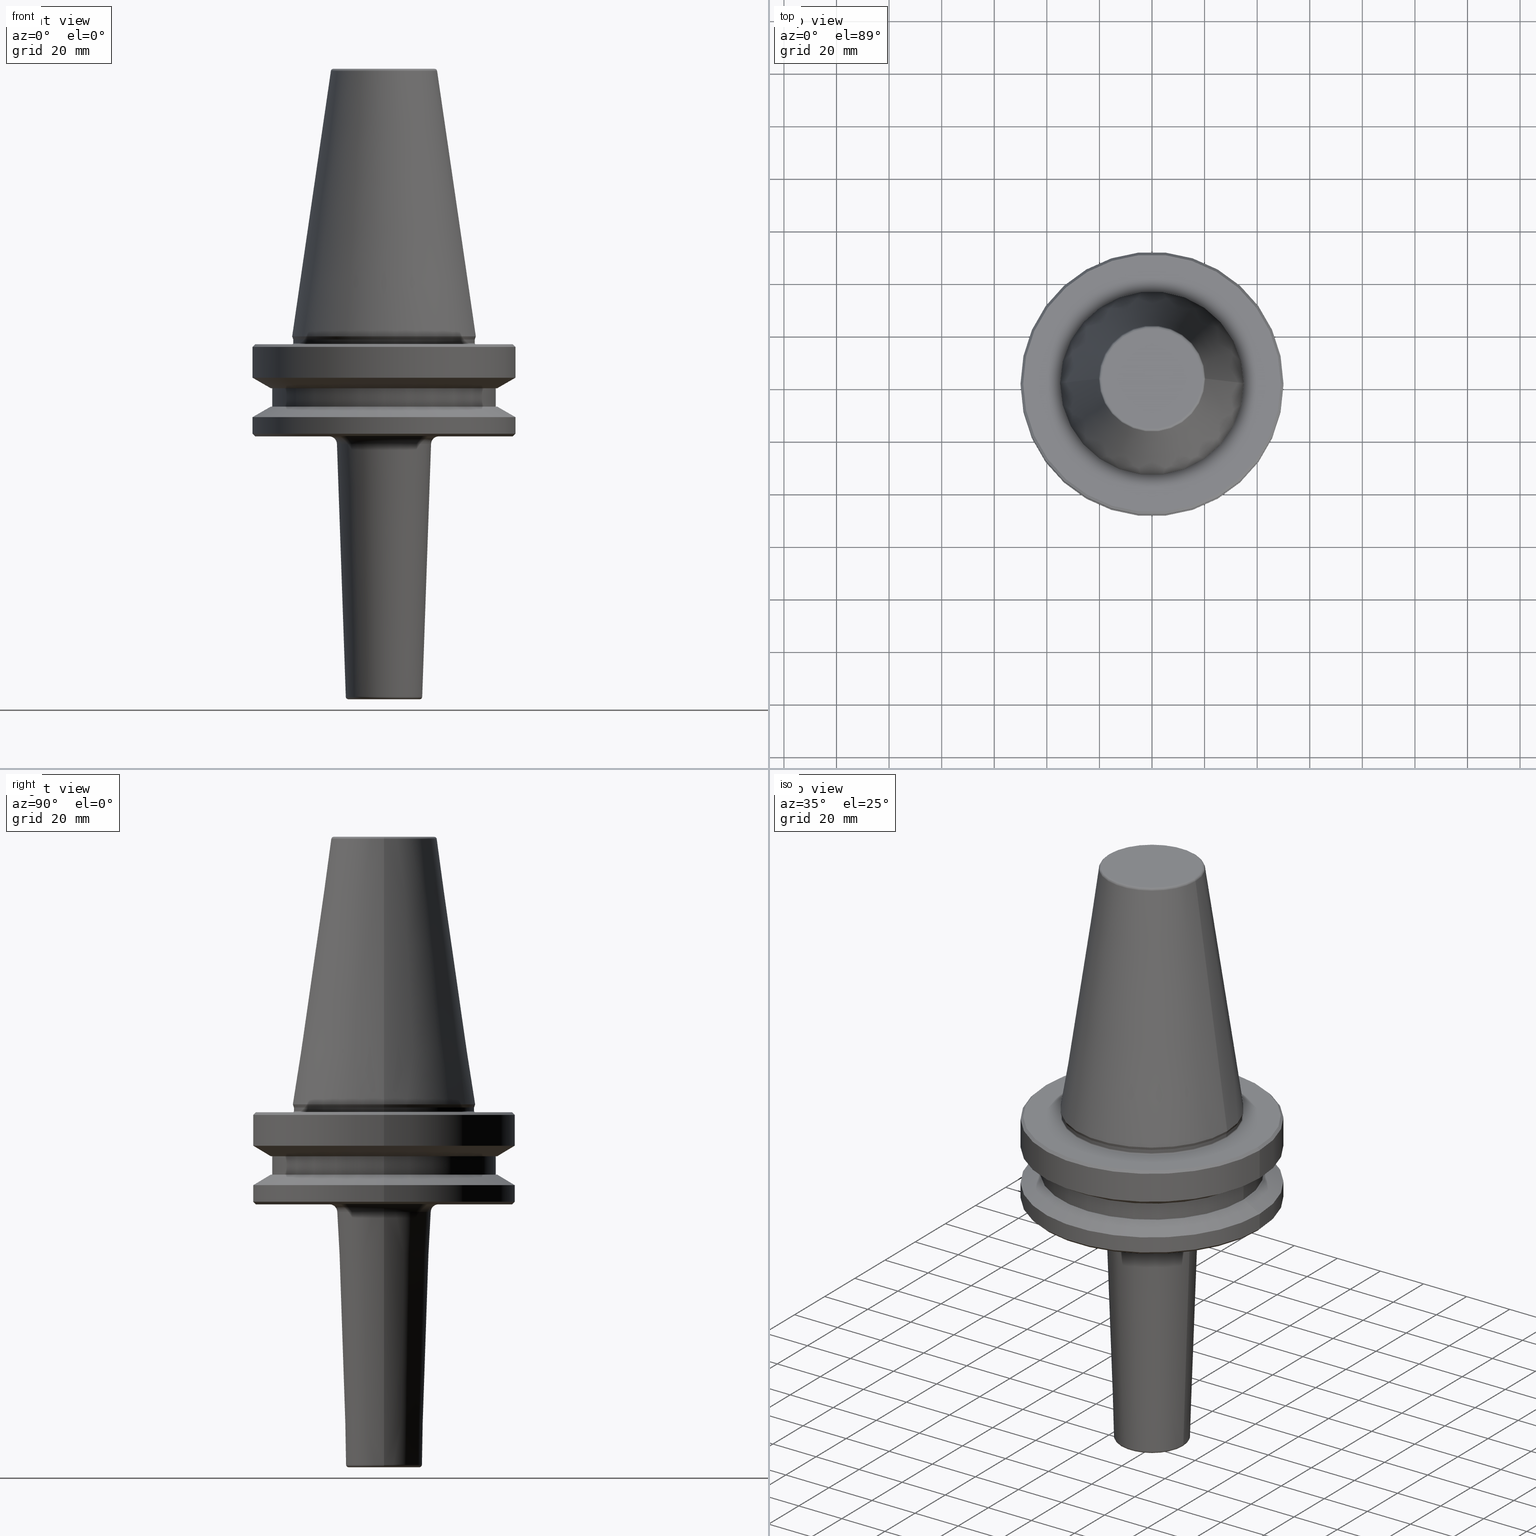
[diagram: canonical four-view strip — front | top / right | iso, engineering-drawing reading convention]
A machine part, canonical four-view strip (front | top / right | iso — engineering-drawing reading convention). The complete STEP part file that produces these views, byte-faithful:
ISO-10303-21;
HEADER;
FILE_DESCRIPTION (( 'STEP AP203' ),
    '1' );
FILE_NAME ('BT50 MCA16 100 AD+B-2.5G 25000 SL.STEP',
    '2019-05-24T11:05:23',
    ( '' ),
    ( '' ),
    'SwSTEP 2.0',
    'SolidWorks 2014',
    '' );
FILE_SCHEMA (( 'CONFIG_CONTROL_DESIGN' ));
ENDSEC;

DATA;
#1 = VECTOR ( 'NONE', #154, 999.9999999999998900 ) ;
#2 = FACE_BOUND ( 'NONE', #626, .T. ) ;
#3 = DIRECTION ( 'NONE',  ( -0.3420201433256682700, 4.188538737676986200E-017, 0.9396926207859086500 ) ) ;
#4 = LINE ( 'NONE', #543, #30 ) ;
#5 = DIRECTION ( 'NONE',  ( -1.000000000000000000, 0.0000000000000000000, 0.0000000000000000000 ) ) ;
#6 = CARTESIAN_POINT ( 'NONE',  ( 0.0000000000000000000, 0.0000000000000000000, -137.0000000000000000 ) ) ;
#7 = AXIS2_PLACEMENT_3D ( 'NONE', #752, #365, #443 ) ;
#8 = FACE_BOUND ( 'NONE', #764, .T. ) ;
#9 = DIRECTION ( 'NONE',  ( 0.1443082272673000800, 1.767266086135278300E-017, -0.9895327864921754600 ) ) ;
#10 = DIRECTION ( 'NONE',  ( 0.0000000000000000000, 0.0000000000000000000, -1.000000000000000000 ) ) ;
#11 = EDGE_CURVE ( 'NONE', #164, #284, #302, .T. ) ;
#12 = ORIENTED_EDGE ( 'NONE', *, *, #790, .T. ) ;
#13 = CARTESIAN_POINT ( 'NONE',  ( -50.00000000000000000, 6.123233995736766100E-015, -30.69977999677324500 ) ) ;
#14 = CIRCLE ( 'NONE', #80, 42.50000000000000000 ) ;
#15 = CONICAL_SURFACE ( 'NONE', #291, 50.00000000000000000, 0.7853981633974482800 ) ;
#16 = DIRECTION ( 'NONE',  ( 1.000000000000000000, 0.0000000000000000000, 0.0000000000000000000 ) ) ;
#17 = EDGE_CURVE ( 'NONE', #168, #212, #304, .T. ) ;
#18 = AXIS2_PLACEMENT_3D ( 'NONE', #223, #674, #146 ) ;
#19 = FACE_OUTER_BOUND ( 'NONE', #640, .T. ) ;
#20 = LINE ( 'NONE', #245, #936 ) ;
#21 = DIRECTION ( 'NONE',  ( -0.0000000000000000000, -0.0000000000000000000, 1.000000000000000000 ) ) ;
#22 = CARTESIAN_POINT ( 'NONE',  ( 34.50000000000000000, 0.0000000000000000000, -2.499999999999988500 ) ) ;
#23 = PLANE ( 'NONE',  #671 ) ;
#24 = DIRECTION ( 'NONE',  ( 1.000000000000000000, 0.0000000000000000000, 0.0000000000000000000 ) ) ;
#25 = PERSON_AND_ORGANIZATION ( #576, #958 ) ;
#26 = APPROVAL_ROLE ( '' ) ;
#27 = VERTEX_POINT ( 'NONE', #447 ) ;
#28 = AXIS2_PLACEMENT_3D ( 'NONE', #767, #841, #739 ) ;
#29 = CARTESIAN_POINT ( 'NONE',  ( 0.0000000000000000000, 0.0000000000000000000, -3.999999999999989800 ) ) ;
#30 = VECTOR ( 'NONE', #3, 999.9999999999998900 ) ;
#31 = DIRECTION ( 'NONE',  ( -0.0000000000000000000, -0.0000000000000000000, 1.000000000000000000 ) ) ;
#32 = VERTEX_POINT ( 'NONE', #838 ) ;
#33 = CARTESIAN_POINT ( 'NONE',  ( 0.0000000000000000000, 0.0000000000000000000, 124.5046326327850600 ) ) ;
#34 = ORIENTED_EDGE ( 'NONE', *, *, #588, .F. ) ;
#35 = APPROVAL ( #636, 'UNSPECIFIED' ) ;
#36 = DIRECTION ( 'NONE',  ( 1.000000000000000000, 0.0000000000000000000, 0.0000000000000000000 ) ) ;
#37 = AXIS2_PLACEMENT_3D ( 'NONE', #816, #310, #138 ) ;
#38 = CARTESIAN_POINT ( 'NONE',  ( 0.0000000000000000000, 0.0000000000000000000, -38.00000000000002100 ) ) ;
#39 = DIRECTION ( 'NONE',  ( 1.224646799147353200E-016, 1.000000000000000000, 0.0000000000000000000 ) ) ;
#40 = LINE ( 'NONE', #432, #730 ) ;
#41 = CIRCLE ( 'NONE', #250, 34.50000000000000000 ) ;
#42 = LINE ( 'NONE', #84, #776 ) ;
#43 = ORIENTED_EDGE ( 'NONE', *, *, #533, .T. ) ;
#44 = CARTESIAN_POINT ( 'NONE',  ( 0.0000000000000000000, 0.0000000000000000000, 124.5046326327850600 ) ) ;
#45 = EDGE_CURVE ( 'NONE', #307, #824, #472, .T. ) ;
#46 = ADVANCED_FACE ( 'NONE', ( #95 ), #814, .F. ) ;
#47 = ADVANCED_FACE ( 'NONE', ( #606 ), #101, .T. ) ;
#48 = CALENDAR_DATE ( 2019, 24, 5 ) ;
#49 = ORIENTED_EDGE ( 'NONE', *, *, #278, .F. ) ;
#50 = EDGE_CURVE ( 'NONE', #314, #116, #832, .T. ) ;
#51 = CIRCLE ( 'NONE', #28, 20.20381605152244500 ) ;
#52 = DIRECTION ( 'NONE',  ( 1.000000000000000000, 0.0000000000000000000, 0.0000000000000000000 ) ) ;
#53 = LINE ( 'NONE', #177, #473 ) ;
#54 = CYLINDRICAL_SURFACE ( 'NONE', #357, 50.00000000000000000 ) ;
#55 = AXIS2_PLACEMENT_3D ( 'NONE', #883, #430, #669 ) ;
#56 = CARTESIAN_POINT ( 'NONE',  ( 0.0000000000000000000, 0.0000000000000000000, -1.167677903268202300 ) ) ;
#57 = DIRECTION ( 'NONE',  ( 1.224646799147353200E-016, 1.000000000000000000, 0.0000000000000000000 ) ) ;
#58 = AXIS2_PLACEMENT_3D ( 'NONE', #29, #721, #765 ) ;
#59 = EDGE_LOOP ( 'NONE', ( #859, #801, #988, #144 ) ) ;
#60 = APPLICATION_CONTEXT ( 'configuration controlled 3d designs of mechanical parts and assemblies' ) ;
#61 = CARTESIAN_POINT ( 'NONE',  ( 50.00000000000000000, 0.0000000000000000000, -15.70022000322675400 ) ) ;
#62 = ORIENTED_EDGE ( 'NONE', *, *, #935, .F. ) ;
#63 = FACE_OUTER_BOUND ( 'NONE', #788, .T. ) ;
#64 = EDGE_CURVE ( 'NONE', #92, #206, #402, .T. ) ;
#65 = ORIENTED_EDGE ( 'NONE', *, *, #990, .F. ) ;
#66 = ORIENTED_EDGE ( 'NONE', *, *, #281, .T. ) ;
#67 = ORIENTED_EDGE ( 'NONE', *, *, #835, .F. ) ;
#68 = EDGE_CURVE ( 'NONE', #438, #168, #355, .T. ) ;
#69 = AXIS2_PLACEMENT_3D ( 'NONE', #393, #837, #308 ) ;
#70 = CARTESIAN_POINT ( 'NONE',  ( 0.0000000000000000000, 49.00000000000000000, -38.00000000000000700 ) ) ;
#71 = DIRECTION ( 'NONE',  ( 1.000000000000000000, 0.0000000000000000000, 0.0000000000000000000 ) ) ;
#72 = ORIENTED_EDGE ( 'NONE', *, *, #50, .F. ) ;
#73 = DIRECTION ( 'NONE',  ( -0.0000000000000000000, -0.0000000000000000000, 1.000000000000000000 ) ) ;
#74 = AXIS2_PLACEMENT_3D ( 'NONE', #965, #569, #503 ) ;
#75 = ORIENTED_EDGE ( 'NONE', *, *, #584, .F. ) ;
#76 = CARTESIAN_POINT ( 'NONE',  ( 0.0000000000000000000, 0.0000000000000000000, 124.5046326327850600 ) ) ;
#77 = ADVANCED_FACE ( 'NONE', ( #529 ), #275, .T. ) ;
#78 = LINE ( 'NONE', #670, #550 ) ;
#79 = ORIENTED_EDGE ( 'NONE', *, *, #810, .T. ) ;
#80 = AXIS2_PLACEMENT_3D ( 'NONE', #248, #173, #412 ) ;
#81 = EDGE_LOOP ( 'NONE', ( #974, #12, #603, #424 ) ) ;
#82 = DIRECTION ( 'NONE',  ( 1.000000000000000000, 0.0000000000000000000, 0.0000000000000000000 ) ) ;
#83 = CARTESIAN_POINT ( 'NONE',  ( 43.07217782649105000, 5.699027233244276800E-015, -26.69999999999998900 ) ) ;
#84 = CARTESIAN_POINT ( 'NONE',  ( 34.50000000000000000, 0.0000000000000000000, 124.5046326327850600 ) ) ;
#85 = ORIENTED_EDGE ( 'NONE', *, *, #708, .F. ) ;
#86 = DIRECTION ( 'NONE',  ( -0.0000000000000000000, -0.0000000000000000000, 1.000000000000000000 ) ) ;
#87 = AXIS2_PLACEMENT_3D ( 'NONE', #713, #259, #789 ) ;
#88 = DIRECTION ( 'NONE',  ( 0.03497858217561827800, 0.0000000000000000000, 0.9993880621605322200 ) ) ;
#89 = LINE ( 'NONE', #112, #336 ) ;
#90 = AXIS2_PLACEMENT_3D ( 'NONE', #470, #981, #457 ) ;
#91 = CIRCLE ( 'NONE', #179, 50.00000000000000000 ) ;
#92 = VERTEX_POINT ( 'NONE', #22 ) ;
#93 = CARTESIAN_POINT ( 'NONE',  ( 0.0000000000000000000, 0.0000000000000000000, -30.69977999677324500 ) ) ;
#94 = VECTOR ( 'NONE', #609, 1000.000000000000000 ) ;
#95 = FACE_OUTER_BOUND ( 'NONE', #495, .T. ) ;
#96 = DIRECTION ( 'NONE',  ( 1.000000000000000000, 0.0000000000000000000, 0.0000000000000000000 ) ) ;
#97 = DIRECTION ( 'NONE',  ( 0.0000000000000000000, 0.0000000000000000000, -1.000000000000000000 ) ) ;
#98 = EDGE_CURVE ( 'NONE', #314, #892, #527, .T. ) ;
#99 = DIRECTION ( 'NONE',  ( -0.0000000000000000000, -0.0000000000000000000, 1.000000000000000000 ) ) ;
#100 = DATE_TIME_ROLE ( 'creation_date' ) ;
#101 = TOROIDAL_SURFACE ( 'NONE', #718, 13.53438768746338800, 0.9999999999999879000 ) ;
#102 = EDGE_CURVE ( 'NONE', #585, #284, #327, .T. ) ;
#103 = ORIENTED_EDGE ( 'NONE', *, *, #742, .T. ) ;
#104 = DIRECTION ( 'NONE',  ( -0.0000000000000000000, -0.0000000000000000000, 1.000000000000000000 ) ) ;
#105 = DIRECTION ( 'NONE',  ( 1.000000000000000000, 0.0000000000000000000, 0.0000000000000000000 ) ) ;
#106 = ORIENTED_EDGE ( 'NONE', *, *, #157, .F. ) ;
#107 = DIRECTION ( 'NONE',  ( 1.000000000000000000, 0.0000000000000000000, 0.0000000000000000000 ) ) ;
#108 = AXIS2_PLACEMENT_3D ( 'NONE', #210, #131, #540 ) ;
#109 = EDGE_LOOP ( 'NONE', ( #961, #864, #526, #75 ) ) ;
#110 = DIRECTION ( 'NONE',  ( 0.7071067811865474600, 8.659560562354931600E-017, -0.7071067811865475700 ) ) ;
#111 = ORIENTED_EDGE ( 'NONE', *, *, #537, .F. ) ;
#112 = CARTESIAN_POINT ( 'NONE',  ( -42.50000000000000000, 5.204748896376250900E-015, 124.5046326327850600 ) ) ;
#113 = ORIENTED_EDGE ( 'NONE', *, *, #157, .T. ) ;
#114 = CARTESIAN_POINT ( 'NONE',  ( 0.0000000000000000000, 0.0000000000000000000, -38.00000000000002100 ) ) ;
#115 = CONICAL_SURFACE ( 'NONE', #968, 34.50000000000000000, 0.3490658503988654500 ) ;
#116 = VERTEX_POINT ( 'NONE', #860 ) ;
#117 = DESIGN_CONTEXT ( 'detailed design', #419, 'design' ) ;
#118 = DIRECTION ( 'NONE',  ( -0.0000000000000000000, -0.0000000000000000000, 1.000000000000000000 ) ) ;
#119 = EDGE_CURVE ( 'NONE', #445, #279, #497, .T. ) ;
#120 = DIRECTION ( 'NONE',  ( 1.000000000000000000, 0.0000000000000000000, 0.0000000000000000000 ) ) ;
#121 = LOCAL_TIME ( 16, 35, 23.00000000000000000, #723 ) ;
#122 = LOCAL_TIME ( 16, 35, 23.00000000000000000, #373 ) ;
#123 = EDGE_LOOP ( 'NONE', ( #262, #986, #862, #186 ) ) ;
#124 = EDGE_CURVE ( 'NONE', #168, #438, #51, .T. ) ;
#125 = DIRECTION ( 'NONE',  ( -0.0000000000000000000, -0.0000000000000000000, 1.000000000000000000 ) ) ;
#126 = DIRECTION ( 'NONE',  ( -0.7071067811865474600, 0.0000000000000000000, -0.7071067811865475700 ) ) ;
#127 = CIRCLE ( 'NONE', #499, 2.999999999999999100 ) ;
#128 = FACE_OUTER_BOUND ( 'NONE', #552, .T. ) ;
#129 = AXIS2_PLACEMENT_3D ( 'NONE', #525, #200, #71 ) ;
#130 = ORIENTED_EDGE ( 'NONE', *, *, #151, .T. ) ;
#131 = DIRECTION ( 'NONE',  ( -0.0000000000000000000, -0.0000000000000000000, 1.000000000000000000 ) ) ;
#132 = PLANE ( 'NONE',  #391 ) ;
#133 = EDGE_CURVE ( 'NONE', #161, #487, #508, .T. ) ;
#134 = LINE ( 'NONE', #798, #679 ) ;
#135 = DIRECTION ( 'NONE',  ( 1.000000000000000000, 0.0000000000000000000, 0.0000000000000000000 ) ) ;
#136 = ADVANCED_FACE ( 'NONE', ( #675 ), #344, .T. ) ;
#137 = DIRECTION ( 'NONE',  ( 1.000000000000000000, 0.0000000000000000000, 0.0000000000000000000 ) ) ;
#138 = DIRECTION ( 'NONE',  ( 1.000000000000000000, 0.0000000000000000000, 0.0000000000000000000 ) ) ;
#139 = CC_DESIGN_APPROVAL ( #35, ( #959 ) ) ;
#140 = ORIENTED_EDGE ( 'NONE', *, *, #785, .F. ) ;
#141 = ADVANCED_FACE ( 'NONE', ( #658 ), #328, .T. ) ;
#142 = VECTOR ( 'NONE', #311, 1000.000000000000000 ) ;
#143 = CONICAL_SURFACE ( 'NONE', #589, 18.00000000000003900, 0.03498571882852540000 ) ;
#144 = ORIENTED_EDGE ( 'NONE', *, *, #742, .F. ) ;
#145 = AXIS2_PLACEMENT_3D ( 'NONE', #498, #31, #501 ) ;
#146 = DIRECTION ( 'NONE',  ( 1.000000000000000000, 0.0000000000000000000, 0.0000000000000000000 ) ) ;
#147 = ADVANCED_FACE ( 'NONE', ( #631 ), #15, .T. ) ;
#148 = DIRECTION ( 'NONE',  ( -1.000000000000000000, 0.0000000000000000000, 0.0000000000000000000 ) ) ;
#149 = CARTESIAN_POINT ( 'NONE',  ( -35.00000000000000000, 4.286263797015737300E-015, -2.999999999999995600 ) ) ;
#150 = CARTESIAN_POINT ( 'NONE',  ( 0.0000000000000000000, 0.0000000000000000000, -19.70000000000001000 ) ) ;
#151 = EDGE_CURVE ( 'NONE', #614, #331, #389, .T. ) ;
#152 = ORIENTED_EDGE ( 'NONE', *, *, #98, .F. ) ;
#153 = VERTEX_POINT ( 'NONE', #158 ) ;
#154 = DIRECTION ( 'NONE',  ( 0.3420201433256682700, 0.0000000000000000000, 0.9396926207859086500 ) ) ;
#155 = CIRCLE ( 'NONE', #282, 17.89867275112848300 ) ;
#156 = CARTESIAN_POINT ( 'NONE',  ( -50.00000000000000000, 6.123233995736766900E-015, -15.70022000322675400 ) ) ;
#157 = EDGE_CURVE ( 'NONE', #279, #445, #14, .T. ) ;
#158 = CARTESIAN_POINT ( 'NONE',  ( -43.07217782649105000, 0.0000000000000000000, -26.69999999999998900 ) ) ;
#159 = APPROVAL_PERSON_ORGANIZATION ( #579, #35, #184 ) ;
#160 = FACE_OUTER_BOUND ( 'NONE', #109, .T. ) ;
#161 = VERTEX_POINT ( 'NONE', #615 ) ;
#162 = DIRECTION ( 'NONE',  ( -0.0000000000000000000, -0.0000000000000000000, 1.000000000000000000 ) ) ;
#163 = CARTESIAN_POINT ( 'NONE',  ( -19.21428326503027200, 2.413662457824437800E-015, 101.7999999999999800 ) ) ;
#164 = VERTEX_POINT ( 'NONE', #83 ) ;
#165 = ORIENTED_EDGE ( 'NONE', *, *, #790, .F. ) ;
#166 = AXIS2_PLACEMENT_3D ( 'NONE', #375, #736, #948 ) ;
#167 = VERTEX_POINT ( 'NONE', #163 ) ;
#168 = VERTEX_POINT ( 'NONE', #379 ) ;
#169 = DIRECTION ( 'NONE',  ( 0.0000000000000000000, 0.0000000000000000000, -1.000000000000000000 ) ) ;
#170 = DIRECTION ( 'NONE',  ( -0.7071067811865474600, 8.659560562354931600E-017, 0.7071067811865475700 ) ) ;
#171 = EDGE_CURVE ( 'NONE', #168, #167, #715, .T. ) ;
#172 = CIRCLE ( 'NONE', #217, 1.000000000000000900 ) ;
#173 = DIRECTION ( 'NONE',  ( -0.0000000000000000000, -0.0000000000000000000, 1.000000000000000000 ) ) ;
#174 = DIRECTION ( 'NONE',  ( -0.0000000000000000000, -0.0000000000000000000, 1.000000000000000000 ) ) ;
#175 = CALENDAR_DATE ( 2019, 24, 5 ) ;
#176 = ORIENTED_EDGE ( 'NONE', *, *, #188, .T. ) ;
#177 = CARTESIAN_POINT ( 'NONE',  ( -43.07217782649103600, 5.274820470751785100E-015, -19.70000000000001000 ) ) ;
#178 = EDGE_CURVE ( 'NONE', #977, #271, #265, .T. ) ;
#179 = AXIS2_PLACEMENT_3D ( 'NONE', #745, #716, #515 ) ;
#180 = CIRCLE ( 'NONE', #634, 43.07217782649105000 ) ;
#181 = CARTESIAN_POINT ( 'NONE',  ( 0.0000000000000000000, 0.0000000000000000000, 101.8000000000000000 ) ) ;
#182 = ORIENTED_EDGE ( 'NONE', *, *, #678, .F. ) ;
#183 = CIRCLE ( 'NONE', #185, 19.21428326503027200 ) ;
#184 = APPROVAL_ROLE ( '' ) ;
#185 = AXIS2_PLACEMENT_3D ( 'NONE', #701, #104, #727 ) ;
#186 = ORIENTED_EDGE ( 'NONE', *, *, #64, .F. ) ;
#187 = CARTESIAN_POINT ( 'NONE',  ( 49.00000000000000000, 0.0000000000000000000, -38.00000000000002100 ) ) ;
#188 = EDGE_CURVE ( 'NONE', #161, #92, #908, .T. ) ;
#189 = ADVANCED_FACE ( 'NONE', ( #917 ), #849, .T. ) ;
#190 = DIRECTION ( 'NONE',  ( -0.0000000000000000000, -0.0000000000000000000, 1.000000000000000000 ) ) ;
#191 = UNCERTAINTY_MEASURE_WITH_UNIT (LENGTH_MEASURE( 1.000000000000000100E-005 ), #632, 'distance_accuracy_value', 'NONE');
#192 = ORIENTED_EDGE ( 'NONE', *, *, #264, .T. ) ;
#193 = EDGE_LOOP ( 'NONE', ( #666, #802, #440, #673 ) ) ;
#194 = VERTEX_POINT ( 'NONE', #285 ) ;
#195 = CC_DESIGN_SECURITY_CLASSIFICATION ( #881, ( #959 ) ) ;
#196 = CARTESIAN_POINT ( 'NONE',  ( -43.07217782649103600, 5.699027233244276000E-015, -19.70000000000001000 ) ) ;
#197 = DIRECTION ( 'NONE',  ( -1.000000000000000000, 0.0000000000000000000, -0.0000000000000000000 ) ) ;
#198 = AXIS2_PLACEMENT_3D ( 'NONE', #535, #987, #934 ) ;
#199 = DIRECTION ( 'NONE',  ( 1.000000000000000000, 0.0000000000000000000, 0.0000000000000000000 ) ) ;
#200 = DIRECTION ( 'NONE',  ( -0.0000000000000000000, -0.0000000000000000000, 1.000000000000000000 ) ) ;
#201 = ORIENTED_EDGE ( 'NONE', *, *, #124, .T. ) ;
#202 = CARTESIAN_POINT ( 'NONE',  ( -34.92499999999999700, 4.277078946022131700E-015, 0.0000000000000000000 ) ) ;
#203 = ORIENTED_EDGE ( 'NONE', *, *, #442, .T. ) ;
#204 = LINE ( 'NONE', #783, #290 ) ;
#205 = DIRECTION ( 'NONE',  ( 1.000000000000000000, 0.0000000000000000000, 0.0000000000000000000 ) ) ;
#206 = VERTEX_POINT ( 'NONE', #659 ) ;
#207 = VERTEX_POINT ( 'NONE', #856 ) ;
#208 = EDGE_CURVE ( 'NONE', #647, #331, #979, .T. ) ;
#209 = EDGE_CURVE ( 'NONE', #92, #161, #486, .T. ) ;
#210 = CARTESIAN_POINT ( 'NONE',  ( 0.0000000000000000000, 0.0000000000000000000, -38.00000000000002100 ) ) ;
#211 = ORIENTED_EDGE ( 'NONE', *, *, #418, .T. ) ;
#212 = VERTEX_POINT ( 'NONE', #202 ) ;
#213 = CC_DESIGN_PERSON_AND_ORGANIZATION_ASSIGNMENT ( #894, #563, ( #406 ) ) ;
#214 = CARTESIAN_POINT ( 'NONE',  ( 0.0000000000000000000, 0.0000000000000000000, -26.69999999999998900 ) ) ;
#215 = FACE_OUTER_BOUND ( 'NONE', #247, .T. ) ;
#216 = CIRCLE ( 'NONE', #743, 43.07217782649103600 ) ;
#217 = AXIS2_PLACEMENT_3D ( 'NONE', #865, #885, #433 ) ;
#218 = DIRECTION ( 'NONE',  ( -0.0000000000000000000, -0.0000000000000000000, 1.000000000000000000 ) ) ;
#219 = DIRECTION ( 'NONE',  ( -0.0000000000000000000, -0.0000000000000000000, 1.000000000000000000 ) ) ;
#220 = ORIENTED_EDGE ( 'NONE', *, *, #11, .F. ) ;
#221 = AXIS2_PLACEMENT_3D ( 'NONE', #822, #573, #292 ) ;
#222 = DIRECTION ( 'NONE',  ( 1.000000000000000000, 0.0000000000000000000, 0.0000000000000000000 ) ) ;
#223 = CARTESIAN_POINT ( 'NONE',  ( 0.0000000000000000000, 0.0000000000000000000, 0.0000000000000000000 ) ) ;
#224 = EDGE_CURVE ( 'NONE', #977, #824, #40, .T. ) ;
#225 = ORIENTED_EDGE ( 'NONE', *, *, #387, .F. ) ;
#226 = CIRCLE ( 'NONE', #69, 50.00000000000000000 ) ;
#227 = FACE_OUTER_BOUND ( 'NONE', #931, .T. ) ;
#228 = ORIENTED_EDGE ( 'NONE', *, *, #224, .F. ) ;
#229 = EDGE_CURVE ( 'NONE', #32, #541, #378, .T. ) ;
#230 = AXIS2_PLACEMENT_3D ( 'NONE', #763, #305, #905 ) ;
#231 = DIRECTION ( 'NONE',  ( -0.0000000000000000000, -0.0000000000000000000, 1.000000000000000000 ) ) ;
#232 = CARTESIAN_POINT ( 'NONE',  ( -49.00000000000000000, 6.062001655779398500E-015, -38.00000000000002100 ) ) ;
#233 = DIRECTION ( 'NONE',  ( 0.0000000000000000000, 0.0000000000000000000, -1.000000000000000000 ) ) ;
#234 = ADVANCED_FACE ( 'NONE', ( #252 ), #574, .T. ) ;
#235 = ORIENTED_EDGE ( 'NONE', *, *, #941, .T. ) ;
#236 = CARTESIAN_POINT ( 'NONE',  ( 0.0000000000000000000, 0.0000000000000000000, -38.00000000000000700 ) ) ;
#237 = DIRECTION ( 'NONE',  ( 0.0000000000000000000, -0.0000000000000000000, 1.000000000000000000 ) ) ;
#238 = CARTESIAN_POINT ( 'NONE',  ( 0.0000000000000000000, 0.0000000000000000000, -19.70000000000001000 ) ) ;
#239 = AXIS2_PLACEMENT_3D ( 'NONE', #6, #880, #644 ) ;
#240 = FACE_OUTER_BOUND ( 'NONE', #657, .T. ) ;
#241 = CIRCLE ( 'NONE', #800, 35.00000000000000000 ) ;
#242 = CARTESIAN_POINT ( 'NONE',  ( 0.0000000000000000000, 0.0000000000000000000, -30.69977999677324500 ) ) ;
#243 = CIRCLE ( 'NONE', #129, 13.53438768746338800 ) ;
#244 = DIRECTION ( 'NONE',  ( 0.0000000000000000000, 0.0000000000000000000, -1.000000000000000000 ) ) ;
#245 = CARTESIAN_POINT ( 'NONE',  ( 34.92499999999999700, 4.277078946022130900E-015, 0.0000000000000000000 ) ) ;
#246 = CC_DESIGN_PERSON_AND_ORGANIZATION_ASSIGNMENT ( #680, #873, ( #431 ) ) ;
#247 = EDGE_LOOP ( 'NONE', ( #998, #425, #79, #367 ) ) ;
#248 = CARTESIAN_POINT ( 'NONE',  ( 0.0000000000000000000, 0.0000000000000000000, -19.70000000000001000 ) ) ;
#249 = DIRECTION ( 'NONE',  ( -0.0000000000000000000, -0.0000000000000000000, 1.000000000000000000 ) ) ;
#250 = AXIS2_PLACEMENT_3D ( 'NONE', #415, #869, #711 ) ;
#251 = CARTESIAN_POINT ( 'NONE',  ( -20.89683693761007900, 2.559124446794836100E-015, -41.00000000000000700 ) ) ;
#252 = FACE_OUTER_BOUND ( 'NONE', #818, .T. ) ;
#253 = CIRCLE ( 'NONE', #166, 19.21428326503027200 ) ;
#254 = FACE_OUTER_BOUND ( 'NONE', #787, .T. ) ;
#255 = ORIENTED_EDGE ( 'NONE', *, *, #912, .F. ) ;
#256 = CARTESIAN_POINT ( 'NONE',  ( 34.50000000000000000, 0.0000000000000000000, -1.167677903268202300 ) ) ;
#257 = ADVANCED_FACE ( 'NONE', ( #595 ), #907, .T. ) ;
#258 = EDGE_CURVE ( 'NONE', #153, #884, #342, .T. ) ;
#259 = DIRECTION ( 'NONE',  ( 0.0000000000000000000, 0.0000000000000000000, 1.000000000000000000 ) ) ;
#260 = CARTESIAN_POINT ( 'NONE',  ( -50.00000000000000000, 0.0000000000000000000, -3.999999999999989800 ) ) ;
#261 = CARTESIAN_POINT ( 'NONE',  ( 0.0000000000000000000, 35.00000000000000000, -3.000000000000002700 ) ) ;
#262 = ORIENTED_EDGE ( 'NONE', *, *, #188, .F. ) ;
#263 = PERSON_AND_ORGANIZATION_ROLE ( 'design_supplier' ) ;
#264 = EDGE_CURVE ( 'NONE', #448, #884, #668, .T. ) ;
#265 = CIRCLE ( 'NONE', #450, 43.07217782649103600 ) ;
#266 = DIRECTION ( 'NONE',  ( 1.000000000000000000, 0.0000000000000000000, 0.0000000000000000000 ) ) ;
#267 = ORIENTED_EDGE ( 'NONE', *, *, #439, .F. ) ;
#268 = CIRCLE ( 'NONE', #198, 50.00000000000000000 ) ;
#269 = CARTESIAN_POINT ( 'NONE',  ( 50.00000000000000000, 6.123233995736766100E-015, -3.999999999999989800 ) ) ;
#270 = ADVANCED_FACE ( 'NONE', ( #766 ), #878, .T. ) ;
#271 = VERTEX_POINT ( 'NONE', #196 ) ;
#272 = DIRECTION ( 'NONE',  ( 1.000000000000000000, 0.0000000000000000000, 0.0000000000000000000 ) ) ;
#273 = DIRECTION ( 'NONE',  ( -1.000000000000000000, 1.224646799147352700E-016, 0.0000000000000000000 ) ) ;
#274 = EDGE_LOOP ( 'NONE', ( #740, #374, #951, #524 ) ) ;
#275 = CONICAL_SURFACE ( 'NONE', #875, 43.07217782649103600, 1.047197551196598100 ) ;
#276 = EDGE_LOOP ( 'NONE', ( #587, #777, #225, #152 ) ) ;
#277 = DIRECTION ( 'NONE',  ( 0.7071067811865474600, 0.0000000000000000000, 0.7071067811865475700 ) ) ;
#278 = EDGE_CURVE ( 'NONE', #696, #206, #241, .T. ) ;
#279 = VERTEX_POINT ( 'NONE', #358 ) ;
#280 = DIRECTION ( 'NONE',  ( -0.0000000000000000000, -0.0000000000000000000, 1.000000000000000000 ) ) ;
#281 = EDGE_CURVE ( 'NONE', #676, #487, #706, .T. ) ;
#282 = AXIS2_PLACEMENT_3D ( 'NONE', #416, #521, #496 ) ;
#283 = DIRECTION ( 'NONE',  ( 0.0000000000000000000, 0.0000000000000000000, -1.000000000000000000 ) ) ;
#284 = VERTEX_POINT ( 'NONE', #960 ) ;
#285 = CARTESIAN_POINT ( 'NONE',  ( 49.00000000000000000, 0.0000000000000000000, -38.00000000000002100 ) ) ;
#286 = FACE_OUTER_BOUND ( 'NONE', #123, .T. ) ;
#287 = ORIENTED_EDGE ( 'NONE', *, *, #490, .T. ) ;
#288 = DIRECTION ( 'NONE',  ( 1.000000000000000000, 0.0000000000000000000, 0.0000000000000000000 ) ) ;
#289 = ORIENTED_EDGE ( 'NONE', *, *, #45, .T. ) ;
#290 = VECTOR ( 'NONE', #170, 1000.000000000000000 ) ;
#291 = AXIS2_PLACEMENT_3D ( 'NONE', #924, #322, #5 ) ;
#292 = DIRECTION ( 'NONE',  ( 1.000000000000000000, 0.0000000000000000000, 0.0000000000000000000 ) ) ;
#293 = DIRECTION ( 'NONE',  ( -0.0000000000000000000, -0.0000000000000000000, 1.000000000000000000 ) ) ;
#294 = CARTESIAN_POINT ( 'NONE',  ( 0.0000000000000000000, 0.0000000000000000000, -30.69977999677324500 ) ) ;
#295 = CARTESIAN_POINT ( 'NONE',  ( 0.0000000000000000000, 0.0000000000000000000, 100.9443082272672900 ) ) ;
#296 = ADVANCED_FACE ( 'NONE', ( #63 ), #639, .T. ) ;
#297 = APPROVAL ( #494, 'UNSPECIFIED' ) ;
#298 = DIRECTION ( 'NONE',  ( 1.000000000000000000, 0.0000000000000000000, 0.0000000000000000000 ) ) ;
#299 = LINE ( 'NONE', #753, #910 ) ;
#300 = FACE_OUTER_BOUND ( 'NONE', #509, .T. ) ;
#301 = AXIS2_PLACEMENT_3D ( 'NONE', #493, #871, #288 ) ;
#302 = LINE ( 'NONE', #731, #142 ) ;
#303 = DIRECTION ( 'NONE',  ( -0.0000000000000000000, -0.0000000000000000000, 1.000000000000000000 ) ) ;
#304 = LINE ( 'NONE', #536, #352 ) ;
#305 = DIRECTION ( 'NONE',  ( 0.0000000000000000000, -0.0000000000000000000, 1.000000000000000000 ) ) ;
#306 = APPLICATION_PROTOCOL_DEFINITION ( 'international standard', 'config_control_design', 1994, #60 ) ;
#307 = VERTEX_POINT ( 'NONE', #156 ) ;
#308 = DIRECTION ( 'NONE',  ( 1.000000000000000000, 0.0000000000000000000, 0.0000000000000000000 ) ) ;
#309 = EDGE_CURVE ( 'NONE', #331, #647, #920, .T. ) ;
#310 = DIRECTION ( 'NONE',  ( -0.0000000000000000000, -0.0000000000000000000, 1.000000000000000000 ) ) ;
#311 = DIRECTION ( 'NONE',  ( 0.8660254037844383700, 1.060575238724906500E-016, -0.5000000000000004400 ) ) ;
#312 = FACE_OUTER_BOUND ( 'NONE', #81, .T. ) ;
#313 = CARTESIAN_POINT ( 'NONE',  ( 0.0000000000000000000, 0.0000000000000000000, -137.0349785821757100 ) ) ;
#314 = VERTEX_POINT ( 'NONE', #946 ) ;
#315 = FACE_OUTER_BOUND ( 'NONE', #755, .T. ) ;
#316 = EDGE_CURVE ( 'NONE', #381, #194, #735, .T. ) ;
#317 = ADVANCED_FACE ( 'NONE', ( #720 ), #561, .T. ) ;
#318 = CARTESIAN_POINT ( 'NONE',  ( 0.0000000000000000000, 0.0000000000000000000, -3.999999999999989800 ) ) ;
#319 = DIRECTION ( 'NONE',  ( -0.0000000000000000000, -0.0000000000000000000, 1.000000000000000000 ) ) ;
#320 = CARTESIAN_POINT ( 'NONE',  ( 0.0000000000000000000, 0.0000000000000000000, -2.999999999999988900 ) ) ;
#321 = EDGE_LOOP ( 'NONE', ( #449, #548 ) ) ;
#322 = DIRECTION ( 'NONE',  ( 0.0000000000000000000, 0.0000000000000000000, -1.000000000000000000 ) ) ;
#323 = CARTESIAN_POINT ( 'NONE',  ( 35.00000000000000000, 0.0000000000000000000, -2.500000000000002200 ) ) ;
#324 = AXIS2_PLACEMENT_3D ( 'NONE', #728, #571, #107 ) ;
#325 = ORIENTED_EDGE ( 'NONE', *, *, #490, .F. ) ;
#326 = CARTESIAN_POINT ( 'NONE',  ( -42.50000000000000000, 5.204748896376250900E-015, -19.70000000000001000 ) ) ;
#327 = LINE ( 'NONE', #693, #463 ) ;
#328 = CYLINDRICAL_SURFACE ( 'NONE', #400, 50.00000000000000000 ) ;
#329 = CIRCLE ( 'NONE', #538, 49.00000000000000000 ) ;
#330 = DIRECTION ( 'NONE',  ( -0.0000000000000000000, -0.0000000000000000000, 1.000000000000000000 ) ) ;
#331 = VERTEX_POINT ( 'NONE', #744 ) ;
#332 = DIRECTION ( 'NONE',  ( -1.000000000000000000, 0.0000000000000000000, 0.0000000000000000000 ) ) ;
#333 = EDGE_CURVE ( 'NONE', #886, #534, #518, .T. ) ;
#334 = TOROIDAL_SURFACE ( 'NONE', #324, 20.89683693761007900, 3.000000000000000000 ) ;
#335 = CARTESIAN_POINT ( 'NONE',  ( 0.0000000000000000000, 0.0000000000000000000, -1.167677903268202300 ) ) ;
#336 = VECTOR ( 'NONE', #645, 1000.000000000000000 ) ;
#337 = EDGE_CURVE ( 'NONE', #167, #741, #253, .T. ) ;
#338 = AXIS2_PLACEMENT_3D ( 'NONE', #214, #99, #712 ) ;
#339 = CARTESIAN_POINT ( 'NONE',  ( 0.0000000000000000000, 42.50000000000000000, -26.70000000000000300 ) ) ;
#340 = CARTESIAN_POINT ( 'NONE',  ( -14.53377574962391700, 1.779874195130235300E-015, -137.0349785821757100 ) ) ;
#341 = MECHANICAL_CONTEXT ( 'NONE', #60, 'mechanical' ) ;
#342 = LINE ( 'NONE', #842, #94 ) ;
#343 = ORIENTED_EDGE ( 'NONE', *, *, #368, .F. ) ;
#344 = TOROIDAL_SURFACE ( 'NONE', #239, 13.53438768746338800, 0.9999999999999879000 ) ;
#345 = PERSON_AND_ORGANIZATION_ROLE ( 'classification_officer' ) ;
#346 = CARTESIAN_POINT ( 'NONE',  ( 0.0000000000000000000, 0.0000000000000000000, -38.00000000000000700 ) ) ;
#347 = AXIS2_PLACEMENT_3D ( 'NONE', #512, #39, #656 ) ;
#348 = CALENDAR_DATE ( 2019, 24, 5 ) ;
#349 = DIRECTION ( 'NONE',  ( 0.0000000000000000000, 0.0000000000000000000, -1.000000000000000000 ) ) ;
#350 = ORIENTED_EDGE ( 'NONE', *, *, #995, .T. ) ;
#351 = CARTESIAN_POINT ( 'NONE',  ( 34.92499999999999700, 0.0000000000000000000, 0.0000000000000000000 ) ) ;
#352 = VECTOR ( 'NONE', #834, 1000.000000000000000 ) ;
#353 = CARTESIAN_POINT ( 'NONE',  ( 0.0000000000000000000, 0.0000000000000000000, 0.0000000000000000000 ) ) ;
#354 = ORIENTED_EDGE ( 'NONE', *, *, #633, .F. ) ;
#355 = CIRCLE ( 'NONE', #819, 20.20381605152244500 ) ;
#356 = CONICAL_SURFACE ( 'NONE', #37, 43.07217782649103600, 1.047197551196598100 ) ;
#357 = AXIS2_PLACEMENT_3D ( 'NONE', #76, #942, #771 ) ;
#358 = CARTESIAN_POINT ( 'NONE',  ( 42.50000000000000000, 0.0000000000000000000, -19.70000000000001000 ) ) ;
#359 = CIRCLE ( 'NONE', #459, 34.92499999999999700 ) ;
#360 = DIRECTION ( 'NONE',  ( 0.0000000000000000000, 0.0000000000000000000, -1.000000000000000000 ) ) ;
#361 = FACE_OUTER_BOUND ( 'NONE', #427, .T. ) ;
#362 = LOCAL_TIME ( 16, 35, 23.00000000000000000, #827 ) ;
#363 = DIRECTION ( 'NONE',  ( 1.000000000000000000, 0.0000000000000000000, 0.0000000000000000000 ) ) ;
#364 = VERTEX_POINT ( 'NONE', #351 ) ;
#365 = DIRECTION ( 'NONE',  ( 0.0000000000000000000, 0.0000000000000000000, -1.000000000000000000 ) ) ;
#366 = CIRCLE ( 'NONE', #619, 17.89867275112848300 ) ;
#367 = ORIENTED_EDGE ( 'NONE', *, *, #17, .F. ) ;
#368 = EDGE_CURVE ( 'NONE', #741, #167, #183, .T. ) ;
#369 = ORIENTED_EDGE ( 'NONE', *, *, #600, .T. ) ;
#370 = DIRECTION ( 'NONE',  ( 1.000000000000000000, 0.0000000000000000000, 0.0000000000000000000 ) ) ;
#371 = CARTESIAN_POINT ( 'NONE',  ( 42.50000000000000000, 0.0000000000000000000, -26.69999999999998900 ) ) ;
#372 = DIRECTION ( 'NONE',  ( -0.0000000000000000000, -0.0000000000000000000, 1.000000000000000000 ) ) ;
#373 = COORDINATED_UNIVERSAL_TIME_OFFSET ( 5, 30, .AHEAD. ) ;
#374 = ORIENTED_EDGE ( 'NONE', *, *, #333, .T. ) ;
#375 = CARTESIAN_POINT ( 'NONE',  ( 0.0000000000000000000, 0.0000000000000000000, 101.7999999999999800 ) ) ;
#376 = DIRECTION ( 'NONE',  ( -1.000000000000000000, 0.0000000000000000000, 0.0000000000000000000 ) ) ;
#377 = ADVANCED_FACE ( 'NONE', ( #952 ), #989, .T. ) ;
#378 = CIRCLE ( 'NONE', #694, 14.53377574962392600 ) ;
#379 = CARTESIAN_POINT ( 'NONE',  ( -20.20381605152244500, 0.0000000000000000000, 100.9443082272672900 ) ) ;
#380 = CARTESIAN_POINT ( 'NONE',  ( 19.21428326503027200, 0.0000000000000000000, 101.7999999999999800 ) ) ;
#381 = VERTEX_POINT ( 'NONE', #232 ) ;
#382 = TOROIDAL_SURFACE ( 'NONE', #145, 20.89683693761007900, 3.000000000000000000 ) ;
#383 = CARTESIAN_POINT ( 'NONE',  ( 50.00000000000000000, 0.0000000000000000000, -37.00000000000002100 ) ) ;
#384 = APPROVAL_DATE_TIME ( #581, #35 ) ;
#385 = CARTESIAN_POINT ( 'NONE',  ( 49.00000000000000000, 6.062001655779398500E-015, -2.999999999999988900 ) ) ;
#386 = CARTESIAN_POINT ( 'NONE',  ( 0.0000000000000000000, 0.0000000000000000000, 124.5046326327850600 ) ) ;
#387 = EDGE_CURVE ( 'NONE', #892, #688, #366, .T. ) ;
#388 = PLANE ( 'NONE',  #230 ) ;
#389 = LINE ( 'NONE', #269, #625 ) ;
#390 = EDGE_CURVE ( 'NONE', #585, #448, #604, .T. ) ;
#391 = AXIS2_PLACEMENT_3D ( 'NONE', #339, #283, #492 ) ;
#392 = EDGE_LOOP ( 'NONE', ( #34, #617 ) ) ;
#393 = CARTESIAN_POINT ( 'NONE',  ( 0.0000000000000000000, 0.0000000000000000000, -30.69977999677324500 ) ) ;
#394 = ORIENTED_EDGE ( 'NONE', *, *, #171, .F. ) ;
#395 = CARTESIAN_POINT ( 'NONE',  ( 0.0000000000000000000, 0.0000000000000000000, -2.499999999999988500 ) ) ;
#396 = DIRECTION ( 'NONE',  ( -0.0000000000000000000, -0.0000000000000000000, 1.000000000000000000 ) ) ;
#397 = DIRECTION ( 'NONE',  ( 1.000000000000000000, 0.0000000000000000000, 0.0000000000000000000 ) ) ;
#398 = ADVANCED_FACE ( 'NONE', ( #312 ), #759, .T. ) ;
#399 = LOCAL_TIME ( 16, 35, 23.00000000000000000, #749 ) ;
#400 = AXIS2_PLACEMENT_3D ( 'NONE', #386, #330, #222 ) ;
#401 = DIRECTION ( 'NONE',  ( 1.000000000000000000, 0.0000000000000000000, 0.0000000000000000000 ) ) ;
#402 = CIRCLE ( 'NONE', #770, 0.5000000000000004400 ) ;
#403 = EDGE_LOOP ( 'NONE', ( #746, #474, #650, #839 ) ) ;
#404 = ORIENTED_EDGE ( 'NONE', *, *, #738, .T. ) ;
#405 = FACE_OUTER_BOUND ( 'NONE', #321, .T. ) ;
#406 = PRODUCT_DEFINITION ( 'UNKNOWN', '', #959, #117 ) ;
#407 = ADVANCED_BREP_SHAPE_REPRESENTATION ( 'BT50 MCA16 100 AD+B-2.5G 25000 SL', ( #710, #87 ), #874 ) ;
#408 = ORIENTED_EDGE ( 'NONE', *, *, #119, .T. ) ;
#409 = EDGE_CURVE ( 'NONE', #438, #741, #507, .T. ) ;
#410 = AXIS2_PLACEMENT_3D ( 'NONE', #590, #592, #52 ) ;
#411 = DIRECTION ( 'NONE',  ( -0.0000000000000000000, -0.0000000000000000000, 1.000000000000000000 ) ) ;
#412 = DIRECTION ( 'NONE',  ( 1.000000000000000000, 0.0000000000000000000, 0.0000000000000000000 ) ) ;
#413 = ORIENTED_EDGE ( 'NONE', *, *, #209, .F. ) ;
#414 = CIRCLE ( 'NONE', #410, 42.50000000000000000 ) ;
#415 = CARTESIAN_POINT ( 'NONE',  ( 0.0000000000000000000, 0.0000000000000000000, -1.167677903268202300 ) ) ;
#416 = CARTESIAN_POINT ( 'NONE',  ( 0.0000000000000000000, 0.0000000000000000000, -40.89506425347322200 ) ) ;
#417 = ORIENTED_EDGE ( 'NONE', *, *, #963, .T. ) ;
#418 = EDGE_CURVE ( 'NONE', #461, #614, #572, .T. ) ;
#419 = APPLICATION_CONTEXT ( 'configuration controlled 3d designs of mechanical parts and assemblies' ) ;
#420 = CYLINDRICAL_SURFACE ( 'NONE', #55, 50.00000000000000000 ) ;
#421 = APPROVAL_STATUS ( 'not_yet_approved' ) ;
#422 = CARTESIAN_POINT ( 'NONE',  ( -50.00000000000000000, 6.123233995736766100E-015, 124.5046326327850600 ) ) ;
#423 = EDGE_CURVE ( 'NONE', #541, #688, #78, .T. ) ;
#424 = ORIENTED_EDGE ( 'NONE', *, *, #896, .F. ) ;
#425 = ORIENTED_EDGE ( 'NONE', *, *, #554, .T. ) ;
#426 = EDGE_LOOP ( 'NONE', ( #354, #404, #872, #528 ) ) ;
#427 = EDGE_LOOP ( 'NONE', ( #140, #72, #441, #325 ) ) ;
#428 = AXIS2_PLACEMENT_3D ( 'NONE', #242, #162, #692 ) ;
#429 = DIRECTION ( 'NONE',  ( 0.0000000000000000000, -1.000000000000000000, 0.0000000000000000000 ) ) ;
#430 = DIRECTION ( 'NONE',  ( -0.0000000000000000000, -0.0000000000000000000, 1.000000000000000000 ) ) ;
#431 = PRODUCT ( 'BT50 MCA16 100 AD+B-2.5G 25000 SL', 'BT50 MCA16 100 AD+B-2.5G 25000 SL', '', ( #341 ) ) ;
#432 = CARTESIAN_POINT ( 'NONE',  ( 43.07217782649103600, 0.0000000000000000000, -19.70000000000001000 ) ) ;
#433 = DIRECTION ( 'NONE',  ( 0.0000000000000000000, 0.0000000000000000000, -1.000000000000000000 ) ) ;
#434 = AXIS2_PLACEMENT_3D ( 'NONE', #638, #231, #266 ) ;
#435 = DIRECTION ( 'NONE',  ( -0.0000000000000000000, -0.0000000000000000000, 1.000000000000000000 ) ) ;
#436 = ADVANCED_FACE ( 'NONE', ( #653 ), #382, .F. ) ;
#437 = ORIENTED_EDGE ( 'NONE', *, *, #840, .F. ) ;
#438 = VERTEX_POINT ( 'NONE', #781 ) ;
#439 = EDGE_CURVE ( 'NONE', #161, #696, #570, .T. ) ;
#440 = ORIENTED_EDGE ( 'NONE', *, *, #309, .F. ) ;
#441 = ORIENTED_EDGE ( 'NONE', *, *, #98, .T. ) ;
#442 = EDGE_CURVE ( 'NONE', #487, #212, #4, .T. ) ;
#443 = DIRECTION ( 'NONE',  ( -1.000000000000000000, 0.0000000000000000000, 0.0000000000000000000 ) ) ;
#444 = CARTESIAN_POINT ( 'NONE',  ( -50.00000000000000000, 6.123233995736766100E-015, -37.00000000000002100 ) ) ;
#445 = VERTEX_POINT ( 'NONE', #326 ) ;
#446 = DIRECTION ( 'NONE',  ( 1.000000000000000000, 0.0000000000000000000, 0.0000000000000000000 ) ) ;
#447 = CARTESIAN_POINT ( 'NONE',  ( 13.53438768746338800, 0.0000000000000000000, -137.9999999999999700 ) ) ;
#448 = VERTEX_POINT ( 'NONE', #444 ) ;
#449 = ORIENTED_EDGE ( 'NONE', *, *, #368, .T. ) ;
#450 = AXIS2_PLACEMENT_3D ( 'NONE', #150, #975, #370 ) ;
#451 = ORIENTED_EDGE ( 'NONE', *, *, #64, .T. ) ;
#452 = DIRECTION ( 'NONE',  ( 0.0000000000000000000, -1.000000000000000000, 0.0000000000000000000 ) ) ;
#453 = CARTESIAN_POINT ( 'NONE',  ( 0.0000000000000000000, 0.0000000000000000000, -1.167677903268202300 ) ) ;
#454 = EDGE_LOOP ( 'NONE', ( #43, #369, #690, #532 ) ) ;
#455 = PERSON_AND_ORGANIZATION ( #576, #958 ) ;
#456 = ADVANCED_FACE ( 'NONE', ( #2, #240 ), #945, .F. ) ;
#457 = DIRECTION ( 'NONE',  ( 1.000000000000000000, 0.0000000000000000000, 0.0000000000000000000 ) ) ;
#458 = EDGE_CURVE ( 'NONE', #206, #696, #641, .T. ) ;
#459 = AXIS2_PLACEMENT_3D ( 'NONE', #353, #190, #725 ) ;
#460 = ORIENTED_EDGE ( 'NONE', *, *, #68, .T. ) ;
#461 = VERTEX_POINT ( 'NONE', #791 ) ;
#462 = ORIENTED_EDGE ( 'NONE', *, *, #489, .T. ) ;
#463 = VECTOR ( 'NONE', #663, 1000.000000000000000 ) ;
#464 = ORIENTED_EDGE ( 'NONE', *, *, #423, .T. ) ;
#465 = CARTESIAN_POINT ( 'NONE',  ( 34.50000000000000000, 0.0000000000000000000, -1.167677903268202300 ) ) ;
#466 = CIRCLE ( 'NONE', #428, 50.00000000000000000 ) ;
#467 = CARTESIAN_POINT ( 'NONE',  ( 0.0000000000000000000, 0.0000000000000000000, 0.0000000000000000000 ) ) ;
#468 = DATE_AND_TIME ( #48, #399 ) ;
#469 = EDGE_CURVE ( 'NONE', #164, #153, #180, .T. ) ;
#470 = CARTESIAN_POINT ( 'NONE',  ( 0.0000000000000000000, 0.0000000000000000000, -38.00000000000000700 ) ) ;
#471 = CARTESIAN_POINT ( 'NONE',  ( 0.0000000000000000000, 0.0000000000000000000, -38.00000000000002100 ) ) ;
#472 = CIRCLE ( 'NONE', #562, 50.00000000000000000 ) ;
#473 = VECTOR ( 'NONE', #627, 1000.000000000000000 ) ;
#474 = ORIENTED_EDGE ( 'NONE', *, *, #418, .F. ) ;
#475 = DIRECTION ( 'NONE',  ( -0.0000000000000000000, -0.0000000000000000000, 1.000000000000000000 ) ) ;
#476 = CC_DESIGN_PERSON_AND_ORGANIZATION_ASSIGNMENT ( #891, #263, ( #959 ) ) ;
#477 = DIRECTION ( 'NONE',  ( 1.224646799147353200E-016, 1.000000000000000000, 0.0000000000000000000 ) ) ;
#478 = DIRECTION ( 'NONE',  ( -1.000000000000000000, 0.0000000000000000000, 0.0000000000000000000 ) ) ;
#479 = DATE_AND_TIME ( #982, #700 ) ;
#480 = ORIENTED_EDGE ( 'NONE', *, *, #124, .F. ) ;
#481 = DIRECTION ( 'NONE',  ( -0.0000000000000000000, -0.0000000000000000000, 1.000000000000000000 ) ) ;
#482 = ADVANCED_FACE ( 'NONE', ( #254 ), #143, .T. ) ;
#483 = EDGE_LOOP ( 'NONE', ( #165, #909, #914, #182 ) ) ;
#484 = AXIS2_PLACEMENT_3D ( 'NONE', #809, #737, #642 ) ;
#485 = ORIENTED_EDGE ( 'NONE', *, *, #511, .F. ) ;
#486 = CIRCLE ( 'NONE', #643, 34.50000000000000000 ) ;
#487 = VERTEX_POINT ( 'NONE', #757 ) ;
#488 = CARTESIAN_POINT ( 'NONE',  ( -42.50000000000000000, 5.204748896376250900E-015, -26.69999999999998900 ) ) ;
#489 = EDGE_CURVE ( 'NONE', #153, #164, #779, .T. ) ;
#490 = EDGE_CURVE ( 'NONE', #688, #892, #155, .T. ) ;
#491 = AXIS2_PLACEMENT_3D ( 'NONE', #677, #911, #148 ) ;
#492 = DIRECTION ( 'NONE',  ( -1.000000000000000000, 0.0000000000000000000, -0.0000000000000000000 ) ) ;
#493 = CARTESIAN_POINT ( 'NONE',  ( 0.0000000000000000000, 0.0000000000000000000, -137.0349785821757100 ) ) ;
#494 = APPROVAL_STATUS ( 'not_yet_approved' ) ;
#495 = EDGE_LOOP ( 'NONE', ( #267, #413, #451, #510 ) ) ;
#496 = DIRECTION ( 'NONE',  ( -1.000000000000000000, 0.0000000000000000000, 0.0000000000000000000 ) ) ;
#497 = CIRCLE ( 'NONE', #971, 42.50000000000000000 ) ;
#498 = CARTESIAN_POINT ( 'NONE',  ( 0.0000000000000000000, 0.0000000000000000000, -41.00000000000000700 ) ) ;
#499 = AXIS2_PLACEMENT_3D ( 'NONE', #251, #57, #523 ) ;
#500 = ORIENTED_EDGE ( 'NONE', *, *, #133, .F. ) ;
#501 = DIRECTION ( 'NONE',  ( 1.000000000000000000, 0.0000000000000000000, 0.0000000000000000000 ) ) ;
#502 = AXIS2_PLACEMENT_3D ( 'NONE', #395, #73, #566 ) ;
#503 = DIRECTION ( 'NONE',  ( 1.000000000000000000, 0.0000000000000000000, 0.0000000000000000000 ) ) ;
#504 = FACE_OUTER_BOUND ( 'NONE', #274, .T. ) ;
#505 = DIRECTION ( 'NONE',  ( -0.0000000000000000000, -0.0000000000000000000, 1.000000000000000000 ) ) ;
#506 = DIRECTION ( 'NONE',  ( -0.0000000000000000000, -0.0000000000000000000, 1.000000000000000000 ) ) ;
#507 = CIRCLE ( 'NONE', #709, 1.000000000000000900 ) ;
#508 = LINE ( 'NONE', #607, #949 ) ;
#509 = EDGE_LOOP ( 'NONE', ( #664, #111 ) ) ;
#510 = ORIENTED_EDGE ( 'NONE', *, *, #458, .T. ) ;
#511 = EDGE_CURVE ( 'NONE', #824, #307, #91, .T. ) ;
#512 = CARTESIAN_POINT ( 'NONE',  ( -19.21428326503027200, 2.353071049842987900E-015, 100.7999999999999800 ) ) ;
#513 = CC_DESIGN_APPROVAL ( #297, ( #406 ) ) ;
#514 = DIRECTION ( 'NONE',  ( 0.8660254037844388200, 0.0000000000000000000, 0.4999999999999997200 ) ) ;
#515 = DIRECTION ( 'NONE',  ( 1.000000000000000000, 0.0000000000000000000, 0.0000000000000000000 ) ) ;
#516 = EDGE_CURVE ( 'NONE', #461, #647, #618, .T. ) ;
#517 = ADVANCED_FACE ( 'NONE', ( #845, #704 ), #132, .F. ) ;
#518 = CIRCLE ( 'NONE', #221, 42.50000000000000000 ) ;
#519 = ORIENTED_EDGE ( 'NONE', *, *, #387, .T. ) ;
#520 = ORIENTED_EDGE ( 'NONE', *, *, #337, .F. ) ;
#521 = DIRECTION ( 'NONE',  ( 0.0000000000000000000, 0.0000000000000000000, -1.000000000000000000 ) ) ;
#522 = ADVANCED_FACE ( 'NONE', ( #405 ), #23, .F. ) ;
#523 = DIRECTION ( 'NONE',  ( -1.000000000000000000, 1.224646799147353500E-016, 0.0000000000000000000 ) ) ;
#524 = ORIENTED_EDGE ( 'NONE', *, *, #119, .F. ) ;
#525 = CARTESIAN_POINT ( 'NONE',  ( 0.0000000000000000000, 0.0000000000000000000, -137.9999999999999700 ) ) ;
#526 = ORIENTED_EDGE ( 'NONE', *, *, #281, .F. ) ;
#527 = CIRCLE ( 'NONE', #921, 3.000000000000002700 ) ;
#528 = ORIENTED_EDGE ( 'NONE', *, *, #45, .F. ) ;
#529 = FACE_OUTER_BOUND ( 'NONE', #426, .T. ) ;
#530 = AXIS2_PLACEMENT_3D ( 'NONE', #453, #481, #750 ) ;
#531 = DIRECTION ( 'NONE',  ( 0.0000000000000000000, 0.0000000000000000000, -1.000000000000000000 ) ) ;
#532 = ORIENTED_EDGE ( 'NONE', *, *, #868, .F. ) ;
#533 = EDGE_CURVE ( 'NONE', #27, #207, #243, .T. ) ;
#534 = VERTEX_POINT ( 'NONE', #371 ) ;
#535 = CARTESIAN_POINT ( 'NONE',  ( 0.0000000000000000000, 0.0000000000000000000, -37.00000000000002100 ) ) ;
#536 = CARTESIAN_POINT ( 'NONE',  ( -34.92499999999999700, 0.0000000000000000000, 0.0000000000000000000 ) ) ;
#537 = EDGE_CURVE ( 'NONE', #207, #27, #799, .T. ) ;
#538 = AXIS2_PLACEMENT_3D ( 'NONE', #38, #578, #992 ) ;
#539 = ORIENTED_EDGE ( 'NONE', *, *, #264, .F. ) ;
#540 = DIRECTION ( 'NONE',  ( 1.000000000000000000, 0.0000000000000000000, 0.0000000000000000000 ) ) ;
#541 = VERTEX_POINT ( 'NONE', #340 ) ;
#542 = VECTOR ( 'NONE', #126, 1000.000000000000000 ) ;
#543 = CARTESIAN_POINT ( 'NONE',  ( -34.50000000000000000, 4.225031457058368900E-015, -1.167677903268202300 ) ) ;
#544 = ADVANCED_FACE ( 'NONE', ( #733 ), #967, .T. ) ;
#545 = AXIS2_PLACEMENT_3D ( 'NONE', #318, #475, #1003 ) ;
#546 = DIRECTION ( 'NONE',  ( -0.0000000000000000000, -0.0000000000000000000, 1.000000000000000000 ) ) ;
#547 = ORIENTED_EDGE ( 'NONE', *, *, #469, .F. ) ;
#548 = ORIENTED_EDGE ( 'NONE', *, *, #337, .T. ) ;
#549 = CARTESIAN_POINT ( 'NONE',  ( 43.07217782649103600, 0.0000000000000000000, -19.70000000000001000 ) ) ;
#550 = VECTOR ( 'NONE', #774, 999.9999999999998900 ) ;
#551 = CARTESIAN_POINT ( 'NONE',  ( 19.21428326503027200, 0.0000000000000000000, 100.7999999999999800 ) ) ;
#552 = EDGE_LOOP ( 'NONE', ( #903, #918 ) ) ;
#553 = CC_DESIGN_PERSON_AND_ORGANIZATION_ASSIGNMENT ( #25, #719, ( #959 ) ) ;
#554 = EDGE_CURVE ( 'NONE', #438, #364, #20, .T. ) ;
#555 = AXIS2_PLACEMENT_3D ( 'NONE', #870, #21, #1000 ) ;
#556 = ORIENTED_EDGE ( 'NONE', *, *, #423, .F. ) ;
#557 = AXIS2_PLACEMENT_3D ( 'NONE', #803, #411, #272 ) ;
#558 = DIRECTION ( 'NONE',  ( -0.0000000000000000000, -0.0000000000000000000, 1.000000000000000000 ) ) ;
#559 = CIRCLE ( 'NONE', #301, 14.53377574962392600 ) ;
#560 = ORIENTED_EDGE ( 'NONE', *, *, #835, .T. ) ;
#561 = CYLINDRICAL_SURFACE ( 'NONE', #729, 50.00000000000000000 ) ;
#562 = AXIS2_PLACEMENT_3D ( 'NONE', #857, #319, #748 ) ;
#563 = PERSON_AND_ORGANIZATION_ROLE ( 'creator' ) ;
#564 = DIRECTION ( 'NONE',  ( 1.000000000000000000, 0.0000000000000000000, 0.0000000000000000000 ) ) ;
#565 = PERSON_AND_ORGANIZATION ( #576, #958 ) ;
#566 = DIRECTION ( 'NONE',  ( 1.000000000000000000, 0.0000000000000000000, 0.0000000000000000000 ) ) ;
#567 = ORIENTED_EDGE ( 'NONE', *, *, #469, .T. ) ;
#568 = ADVANCED_FACE ( 'NONE', ( #300 ), #852, .T. ) ;
#569 = DIRECTION ( 'NONE',  ( -0.0000000000000000000, -0.0000000000000000000, 1.000000000000000000 ) ) ;
#570 = CIRCLE ( 'NONE', #601, 0.5000000000000004400 ) ;
#571 = DIRECTION ( 'NONE',  ( -0.0000000000000000000, -0.0000000000000000000, 1.000000000000000000 ) ) ;
#572 = CIRCLE ( 'NONE', #655, 49.00000000000000000 ) ;
#573 = DIRECTION ( 'NONE',  ( -0.0000000000000000000, -0.0000000000000000000, 1.000000000000000000 ) ) ;
#574 = CONICAL_SURFACE ( 'NONE', #751, 18.00000000000003900, 0.03498571882852540000 ) ;
#575 = EDGE_LOOP ( 'NONE', ( #539, #754, #624, #67 ) ) ;
#576 = PERSON ( 'UNSPECIFIED', 'UNSPECIFIED', 'UNSPECIFIED', ('UNSPECIFIED'), ('UNSPECIFIED'), ('UNSPECIFIED') ) ;
#577 = APPROVAL_DATE_TIME ( #697, #297 ) ;
#578 = DIRECTION ( 'NONE',  ( -0.0000000000000000000, -0.0000000000000000000, 1.000000000000000000 ) ) ;
#579 = PERSON_AND_ORGANIZATION ( #576, #958 ) ;
#580 = AXIS2_PLACEMENT_3D ( 'NONE', #652, #118, #926 ) ;
#581 = DATE_AND_TIME ( #175, #122 ) ;
#582 = DIRECTION ( 'NONE',  ( -0.0000000000000000000, -0.0000000000000000000, 1.000000000000000000 ) ) ;
#583 = LINE ( 'NONE', #187, #648 ) ;
#584 = EDGE_CURVE ( 'NONE', #92, #676, #42, .T. ) ;
#585 = VERTEX_POINT ( 'NONE', #383 ) ;
#586 = EDGE_LOOP ( 'NONE', ( #66, #203, #616, #597 ) ) ;
#587 = ORIENTED_EDGE ( 'NONE', *, *, #761, .F. ) ;
#588 = EDGE_CURVE ( 'NONE', #194, #381, #329, .T. ) ;
#589 = AXIS2_PLACEMENT_3D ( 'NONE', #346, #970, #24 ) ;
#590 = CARTESIAN_POINT ( 'NONE',  ( 0.0000000000000000000, 0.0000000000000000000, -26.69999999999998900 ) ) ;
#591 = TOROIDAL_SURFACE ( 'NONE', #484, 35.00000000000000000, 0.5000000000000004400 ) ;
#592 = DIRECTION ( 'NONE',  ( -0.0000000000000000000, -0.0000000000000000000, 1.000000000000000000 ) ) ;
#593 = ORIENTED_EDGE ( 'NONE', *, *, #409, .F. ) ;
#594 = AXIS2_PLACEMENT_3D ( 'NONE', #993, #582, #969 ) ;
#595 = FACE_OUTER_BOUND ( 'NONE', #928, .T. ) ;
#596 = FACE_OUTER_BOUND ( 'NONE', #392, .T. ) ;
#597 = ORIENTED_EDGE ( 'NONE', *, *, #684, .F. ) ;
#598 = EDGE_LOOP ( 'NONE', ( #62, #130, #732, #972 ) ) ;
#599 = CYLINDRICAL_SURFACE ( 'NONE', #557, 42.50000000000000000 ) ;
#600 = EDGE_CURVE ( 'NONE', #207, #541, #830, .T. ) ;
#601 = AXIS2_PLACEMENT_3D ( 'NONE', #923, #477, #662 ) ;
#602 = CARTESIAN_POINT ( 'NONE',  ( -50.00000000000000000, 6.123233995736766100E-015, -3.999999999999989800 ) ) ;
#603 = ORIENTED_EDGE ( 'NONE', *, *, #390, .F. ) ;
#604 = CIRCLE ( 'NONE', #555, 50.00000000000000000 ) ;
#605 = CARTESIAN_POINT ( 'NONE',  ( -17.89867275112848000, 2.191955229365543900E-015, -40.89506425347322200 ) ) ;
#606 = FACE_OUTER_BOUND ( 'NONE', #454, .T. ) ;
#607 = CARTESIAN_POINT ( 'NONE',  ( -34.50000000000000000, 4.225031457058368900E-015, 124.5046326327850600 ) ) ;
#608 = AXIS2_PLACEMENT_3D ( 'NONE', #649, #505, #36 ) ;
#609 = DIRECTION ( 'NONE',  ( -0.8660254037844383700, 0.0000000000000000000, -0.5000000000000004400 ) ) ;
#610 = AXIS2_PLACEMENT_3D ( 'NONE', #621, #722, #686 ) ;
#611 = ORIENTED_EDGE ( 'NONE', *, *, #178, .T. ) ;
#612 = ADVANCED_FACE ( 'NONE', ( #215 ), #867, .T. ) ;
#613 = DIRECTION ( 'NONE',  ( -0.0000000000000000000, -0.0000000000000000000, 1.000000000000000000 ) ) ;
#614 = VERTEX_POINT ( 'NONE', #385 ) ;
#615 = CARTESIAN_POINT ( 'NONE',  ( -34.50000000000000000, 4.255647627037052700E-015, -2.499999999999988500 ) ) ;
#616 = ORIENTED_EDGE ( 'NONE', *, *, #810, .F. ) ;
#617 = ORIENTED_EDGE ( 'NONE', *, *, #316, .F. ) ;
#618 = LINE ( 'NONE', #260, #542 ) ;
#619 = AXIS2_PLACEMENT_3D ( 'NONE', #661, #244, #478 ) ;
#620 = FACE_OUTER_BOUND ( 'NONE', #966, .T. ) ;
#621 = CARTESIAN_POINT ( 'NONE',  ( 0.0000000000000000000, 0.0000000000000000000, -38.00000000000000700 ) ) ;
#622 = AXIS2_PLACEMENT_3D ( 'NONE', #820, #293, #135 ) ;
#623 = DIRECTION ( 'NONE',  ( -0.0000000000000000000, -0.0000000000000000000, 1.000000000000000000 ) ) ;
#624 = ORIENTED_EDGE ( 'NONE', *, *, #102, .T. ) ;
#625 = VECTOR ( 'NONE', #110, 1000.000000000000000 ) ;
#626 = EDGE_LOOP ( 'NONE', ( #628, #49 ) ) ;
#627 = DIRECTION ( 'NONE',  ( -0.8660254037844388200, 1.060575238724907200E-016, 0.4999999999999997200 ) ) ;
#628 = ORIENTED_EDGE ( 'NONE', *, *, #458, .F. ) ;
#629 = EDGE_CURVE ( 'NONE', #534, #279, #687, .T. ) ;
#630 = ADVANCED_FACE ( 'NONE', ( #991 ), #889, .T. ) ;
#631 = FACE_OUTER_BOUND ( 'NONE', #598, .T. ) ;
#632 =( LENGTH_UNIT ( ) NAMED_UNIT ( * ) SI_UNIT ( .MILLI., .METRE. ) );
#633 = EDGE_CURVE ( 'NONE', #271, #307, #53, .T. ) ;
#634 = AXIS2_PLACEMENT_3D ( 'NONE', #795, #372, #298 ) ;
#635 = EDGE_LOOP ( 'NONE', ( #462, #567 ) ) ;
#636 = APPROVAL_STATUS ( 'not_yet_approved' ) ;
#637 = DIRECTION ( 'NONE',  ( 1.000000000000000000, 0.0000000000000000000, 0.0000000000000000000 ) ) ;
#638 = CARTESIAN_POINT ( 'NONE',  ( 0.0000000000000000000, 0.0000000000000000000, 124.5046326327850600 ) ) ;
#639 = CONICAL_SURFACE ( 'NONE', #7, 34.92499999999999700, 0.1448138465474120600 ) ;
#640 = EDGE_LOOP ( 'NONE', ( #611, #899, #485, #228 ) ) ;
#641 = CIRCLE ( 'NONE', #622, 35.00000000000000000 ) ;
#642 = DIRECTION ( 'NONE',  ( 1.000000000000000000, 0.0000000000000000000, 0.0000000000000000000 ) ) ;
#643 = AXIS2_PLACEMENT_3D ( 'NONE', #846, #506, #955 ) ;
#644 = DIRECTION ( 'NONE',  ( 1.000000000000000000, 0.0000000000000000000, 0.0000000000000000000 ) ) ;
#645 = DIRECTION ( 'NONE',  ( -0.0000000000000000000, -0.0000000000000000000, 1.000000000000000000 ) ) ;
#646 = CONICAL_SURFACE ( 'NONE', #964, 50.00000000000000000, 1.047197551196597200 ) ;
#647 = VERTEX_POINT ( 'NONE', #602 ) ;
#648 = VECTOR ( 'NONE', #277, 1000.000000000000000 ) ;
#649 = CARTESIAN_POINT ( 'NONE',  ( 0.0000000000000000000, 0.0000000000000000000, -2.999999999999988900 ) ) ;
#650 = ORIENTED_EDGE ( 'NONE', *, *, #516, .T. ) ;
#651 = ORIENTED_EDGE ( 'NONE', *, *, #442, .F. ) ;
#652 = CARTESIAN_POINT ( 'NONE',  ( 0.0000000000000000000, 0.0000000000000000000, -137.9999999999999700 ) ) ;
#653 = FACE_OUTER_BOUND ( 'NONE', #276, .T. ) ;
#654 = EDGE_CURVE ( 'NONE', #487, #676, #41, .T. ) ;
#655 = AXIS2_PLACEMENT_3D ( 'NONE', #320, #850, #401 ) ;
#656 = DIRECTION ( 'NONE',  ( -1.000000000000000000, 1.224646799147353700E-016, 0.0000000000000000000 ) ) ;
#657 = EDGE_LOOP ( 'NONE', ( #211, #703 ) ) ;
#658 = FACE_OUTER_BOUND ( 'NONE', #575, .T. ) ;
#659 = CARTESIAN_POINT ( 'NONE',  ( 35.00000000000000000, 0.0000000000000000000, -2.999999999999995600 ) ) ;
#660 = AXIS2_PLACEMENT_3D ( 'NONE', #780, #169, #702 ) ;
#661 = CARTESIAN_POINT ( 'NONE',  ( 0.0000000000000000000, 0.0000000000000000000, -40.89506425347322200 ) ) ;
#662 = DIRECTION ( 'NONE',  ( -1.000000000000000000, 1.224646799147349500E-016, 0.0000000000000000000 ) ) ;
#663 = DIRECTION ( 'NONE',  ( -0.0000000000000000000, -0.0000000000000000000, 1.000000000000000000 ) ) ;
#664 = ORIENTED_EDGE ( 'NONE', *, *, #533, .F. ) ;
#665 = AXIS2_PLACEMENT_3D ( 'NONE', #681, #396, #672 ) ;
#666 = ORIENTED_EDGE ( 'NONE', *, *, #511, .T. ) ;
#667 = FACE_OUTER_BOUND ( 'NONE', #768, .T. ) ;
#668 = LINE ( 'NONE', #422, #877 ) ;
#669 = DIRECTION ( 'NONE',  ( 1.000000000000000000, 0.0000000000000000000, 0.0000000000000000000 ) ) ;
#670 = CARTESIAN_POINT ( 'NONE',  ( -18.00000000000003900, 2.204364238465240600E-015, -38.00000000000000700 ) ) ;
#671 = AXIS2_PLACEMENT_3D ( 'NONE', #181, #97, #197 ) ;
#672 = DIRECTION ( 'NONE',  ( 1.000000000000000000, 0.0000000000000000000, 0.0000000000000000000 ) ) ;
#673 = ORIENTED_EDGE ( 'NONE', *, *, #963, .F. ) ;
#674 = DIRECTION ( 'NONE',  ( -0.0000000000000000000, -0.0000000000000000000, 1.000000000000000000 ) ) ;
#675 = FACE_OUTER_BOUND ( 'NONE', #59, .T. ) ;
#676 = VERTEX_POINT ( 'NONE', #256 ) ;
#677 = CARTESIAN_POINT ( 'NONE',  ( 0.0000000000000000000, 0.0000000000000000000, -3.999999999999989800 ) ) ;
#678 = EDGE_CURVE ( 'NONE', #448, #585, #268, .T. ) ;
#679 = VECTOR ( 'NONE', #953, 1000.000000000000000 ) ;
#680 = PERSON_AND_ORGANIZATION ( #576, #958 ) ;
#681 = CARTESIAN_POINT ( 'NONE',  ( 0.0000000000000000000, 0.0000000000000000000, -2.500000000000002200 ) ) ;
#682 = ADVANCED_FACE ( 'NONE', ( #815 ), #115, .T. ) ;
#683 = ORIENTED_EDGE ( 'NONE', *, *, #258, .T. ) ;
#684 = EDGE_CURVE ( 'NONE', #676, #364, #775, .T. ) ;
#685 = AXIS2_PLACEMENT_3D ( 'NONE', #70, #237, #997 ) ;
#686 = DIRECTION ( 'NONE',  ( 1.000000000000000000, 0.0000000000000000000, 0.0000000000000000000 ) ) ;
#687 = LINE ( 'NONE', #829, #833 ) ;
#688 = VERTEX_POINT ( 'NONE', #605 ) ;
#689 = ADVANCED_FACE ( 'NONE', ( #8, #596 ), #805, .F. ) ;
#690 = ORIENTED_EDGE ( 'NONE', *, *, #229, .F. ) ;
#691 = DIRECTION ( 'NONE',  ( -0.0000000000000000000, -0.0000000000000000000, 1.000000000000000000 ) ) ;
#692 = DIRECTION ( 'NONE',  ( 1.000000000000000000, 0.0000000000000000000, 0.0000000000000000000 ) ) ;
#693 = CARTESIAN_POINT ( 'NONE',  ( 50.00000000000000000, 0.0000000000000000000, 124.5046326327850600 ) ) ;
#694 = AXIS2_PLACEMENT_3D ( 'NONE', #313, #280, #812 ) ;
#695 = CALENDAR_DATE ( 2019, 24, 5 ) ;
#696 = VERTEX_POINT ( 'NONE', #149 ) ;
#697 = DATE_AND_TIME ( #695, #121 ) ;
#698 = ADVANCED_FACE ( 'NONE', ( #227 ), #54, .T. ) ;
#699 = CARTESIAN_POINT ( 'NONE',  ( 18.00000000000003900, 0.0000000000000000000, -38.00000000000000700 ) ) ;
#700 = LOCAL_TIME ( 16, 35, 23.00000000000000000, #893 ) ;
#701 = CARTESIAN_POINT ( 'NONE',  ( 0.0000000000000000000, 0.0000000000000000000, 101.7999999999999800 ) ) ;
#702 = DIRECTION ( 'NONE',  ( -1.000000000000000000, 0.0000000000000000000, -0.0000000000000000000 ) ) ;
#703 = ORIENTED_EDGE ( 'NONE', *, *, #935, .T. ) ;
#704 = FACE_OUTER_BOUND ( 'NONE', #635, .T. ) ;
#705 = ADVANCED_FACE ( 'NONE', ( #128, #821 ), #388, .F. ) ;
#706 = CIRCLE ( 'NONE', #947, 34.50000000000000000 ) ;
#707 = CIRCLE ( 'NONE', #90, 20.89683693761007900 ) ;
#708 = EDGE_CURVE ( 'NONE', #307, #647, #299, .T. ) ;
#709 = AXIS2_PLACEMENT_3D ( 'NONE', #551, #429, #932 ) ;
#710 = MANIFOLD_SOLID_BREP ( 'Fillet1', #882 ) ;
#711 = DIRECTION ( 'NONE',  ( 1.000000000000000000, 0.0000000000000000000, 0.0000000000000000000 ) ) ;
#712 = DIRECTION ( 'NONE',  ( 1.000000000000000000, 0.0000000000000000000, 0.0000000000000000000 ) ) ;
#713 = CARTESIAN_POINT ( 'NONE',  ( 0.0000000000000000000, 0.0000000000000000000, 0.0000000000000000000 ) ) ;
#714 = AXIS2_PLACEMENT_3D ( 'NONE', #467, #360, #376 ) ;
#715 = CIRCLE ( 'NONE', #347, 0.9999999999999974500 ) ;
#716 = DIRECTION ( 'NONE',  ( -0.0000000000000000000, -0.0000000000000000000, 1.000000000000000000 ) ) ;
#717 = EDGE_LOOP ( 'NONE', ( #437, #863 ) ) ;
#718 = AXIS2_PLACEMENT_3D ( 'NONE', #919, #249, #758 ) ;
#719 = PERSON_AND_ORGANIZATION_ROLE ( 'creator' ) ;
#720 = FACE_OUTER_BOUND ( 'NONE', #193, .T. ) ;
#721 = DIRECTION ( 'NONE',  ( -0.0000000000000000000, -0.0000000000000000000, 1.000000000000000000 ) ) ;
#722 = DIRECTION ( 'NONE',  ( -0.0000000000000000000, -0.0000000000000000000, 1.000000000000000000 ) ) ;
#723 = COORDINATED_UNIVERSAL_TIME_OFFSET ( 5, 30, .AHEAD. ) ;
#724 = APPROVAL_DATE_TIME ( #999, #826 ) ;
#725 = DIRECTION ( 'NONE',  ( 1.000000000000000000, 0.0000000000000000000, 0.0000000000000000000 ) ) ;
#726 = CC_DESIGN_DATE_AND_TIME_ASSIGNMENT ( #468, #876, ( #881 ) ) ;
#727 = DIRECTION ( 'NONE',  ( 1.000000000000000000, 0.0000000000000000000, 0.0000000000000000000 ) ) ;
#728 = CARTESIAN_POINT ( 'NONE',  ( 0.0000000000000000000, 0.0000000000000000000, -41.00000000000000700 ) ) ;
#729 = AXIS2_PLACEMENT_3D ( 'NONE', #33, #86, #446 ) ;
#730 = VECTOR ( 'NONE', #514, 1000.000000000000000 ) ;
#731 = CARTESIAN_POINT ( 'NONE',  ( 50.00000000000000000, 6.123233995736766100E-015, -30.69977999677324500 ) ) ;
#732 = ORIENTED_EDGE ( 'NONE', *, *, #309, .T. ) ;
#733 = FACE_OUTER_BOUND ( 'NONE', #586, .T. ) ;
#734 = DIRECTION ( 'NONE',  ( 1.224646799147353200E-016, 1.000000000000000000, 0.0000000000000000000 ) ) ;
#735 = CIRCLE ( 'NONE', #108, 49.00000000000000000 ) ;
#736 = DIRECTION ( 'NONE',  ( -0.0000000000000000000, -0.0000000000000000000, 1.000000000000000000 ) ) ;
#737 = DIRECTION ( 'NONE',  ( -0.0000000000000000000, -0.0000000000000000000, 1.000000000000000000 ) ) ;
#738 = EDGE_CURVE ( 'NONE', #271, #977, #216, .T. ) ;
#739 = DIRECTION ( 'NONE',  ( 1.000000000000000000, 0.0000000000000000000, 0.0000000000000000000 ) ) ;
#740 = ORIENTED_EDGE ( 'NONE', *, *, #941, .F. ) ;
#741 = VERTEX_POINT ( 'NONE', #380 ) ;
#742 = EDGE_CURVE ( 'NONE', #541, #32, #559, .T. ) ;
#743 = AXIS2_PLACEMENT_3D ( 'NONE', #844, #769, #564 ) ;
#744 = CARTESIAN_POINT ( 'NONE',  ( 50.00000000000000000, 0.0000000000000000000, -3.999999999999989800 ) ) ;
#745 = CARTESIAN_POINT ( 'NONE',  ( 0.0000000000000000000, 0.0000000000000000000, -15.70022000322675400 ) ) ;
#746 = ORIENTED_EDGE ( 'NONE', *, *, #151, .F. ) ;
#747 = ORIENTED_EDGE ( 'NONE', *, *, #912, .T. ) ;
#748 = DIRECTION ( 'NONE',  ( 1.000000000000000000, 0.0000000000000000000, 0.0000000000000000000 ) ) ;
#749 = COORDINATED_UNIVERSAL_TIME_OFFSET ( 5, 30, .AHEAD. ) ;
#750 = DIRECTION ( 'NONE',  ( 1.000000000000000000, 0.0000000000000000000, 0.0000000000000000000 ) ) ;
#751 = AXIS2_PLACEMENT_3D ( 'NONE', #236, #691, #199 ) ;
#752 = CARTESIAN_POINT ( 'NONE',  ( 0.0000000000000000000, 0.0000000000000000000, 0.0000000000000000000 ) ) ;
#753 = CARTESIAN_POINT ( 'NONE',  ( -50.00000000000000000, 6.123233995736766100E-015, 124.5046326327850600 ) ) ;
#754 = ORIENTED_EDGE ( 'NONE', *, *, #678, .T. ) ;
#755 = EDGE_LOOP ( 'NONE', ( #500, #176, #929, #906 ) ) ;
#756 = EDGE_LOOP ( 'NONE', ( #460, #855, #343, #593 ) ) ;
#757 = CARTESIAN_POINT ( 'NONE',  ( -34.50000000000000000, 4.225031457058368900E-015, -1.167677903268202300 ) ) ;
#758 = DIRECTION ( 'NONE',  ( 1.000000000000000000, 0.0000000000000000000, 0.0000000000000000000 ) ) ;
#759 = CONICAL_SURFACE ( 'NONE', #762, 49.00000000000000000, 0.7853981633974482800 ) ;
#760 = CC_DESIGN_PERSON_AND_ORGANIZATION_ASSIGNMENT ( #565, #345, ( #881 ) ) ;
#761 = EDGE_CURVE ( 'NONE', #116, #314, #707, .T. ) ;
#762 = AXIS2_PLACEMENT_3D ( 'NONE', #114, #558, #205 ) ;
#763 = CARTESIAN_POINT ( 'NONE',  ( 0.0000000000000000000, 43.07217782649103600, -19.70000000000000300 ) ) ;
#764 = EDGE_LOOP ( 'NONE', ( #828, #794 ) ) ;
#765 = DIRECTION ( 'NONE',  ( 1.000000000000000000, 0.0000000000000000000, 0.0000000000000000000 ) ) ;
#766 = FACE_OUTER_BOUND ( 'NONE', #483, .T. ) ;
#767 = CARTESIAN_POINT ( 'NONE',  ( 0.0000000000000000000, 0.0000000000000000000, 100.9443082272672900 ) ) ;
#768 = EDGE_LOOP ( 'NONE', ( #547, #898, #866, #858 ) ) ;
#769 = DIRECTION ( 'NONE',  ( -0.0000000000000000000, -0.0000000000000000000, 1.000000000000000000 ) ) ;
#770 = AXIS2_PLACEMENT_3D ( 'NONE', #323, #778, #349 ) ;
#771 = DIRECTION ( 'NONE',  ( 1.000000000000000000, 0.0000000000000000000, 0.0000000000000000000 ) ) ;
#772 = CARTESIAN_POINT ( 'NONE',  ( 0.0000000000000000000, 0.0000000000000000000, 124.5046326327850600 ) ) ;
#773 = ADVANCED_FACE ( 'NONE', ( #19 ), #356, .T. ) ;
#774 = DIRECTION ( 'NONE',  ( -0.03497858217561827800, 4.283640870008358500E-018, 0.9993880621605322200 ) ) ;
#775 = LINE ( 'NONE', #465, #1 ) ;
#776 = VECTOR ( 'NONE', #546, 1000.000000000000000 ) ;
#777 = ORIENTED_EDGE ( 'NONE', *, *, #785, .T. ) ;
#778 = DIRECTION ( 'NONE',  ( 0.0000000000000000000, -1.000000000000000000, 0.0000000000000000000 ) ) ;
#779 = CIRCLE ( 'NONE', #338, 43.07217782649105000 ) ;
#780 = CARTESIAN_POINT ( 'NONE',  ( 0.0000000000000000000, 2.830027869310029300E-013, -138.0000000000000000 ) ) ;
#781 = CARTESIAN_POINT ( 'NONE',  ( 20.20381605152244500, 3.375666405914009100E-015, 100.9443082272672900 ) ) ;
#782 = PERSON_AND_ORGANIZATION ( #576, #958 ) ;
#783 = CARTESIAN_POINT ( 'NONE',  ( -49.00000000000000000, 6.000769315822030900E-015, -38.00000000000002100 ) ) ;
#784 = LINE ( 'NONE', #699, #792 ) ;
#785 = EDGE_CURVE ( 'NONE', #116, #688, #127, .T. ) ;
#786 = EDGE_LOOP ( 'NONE', ( #113, #408 ) ) ;
#787 = EDGE_LOOP ( 'NONE', ( #831, #464, #287, #930 ) ) ;
#788 = EDGE_LOOP ( 'NONE', ( #847, #480, #976, #747 ) ) ;
#789 = DIRECTION ( 'NONE',  ( 1.000000000000000000, 0.0000000000000000000, 0.0000000000000000000 ) ) ;
#790 = EDGE_CURVE ( 'NONE', #381, #448, #204, .T. ) ;
#791 = CARTESIAN_POINT ( 'NONE',  ( -49.00000000000000000, 0.0000000000000000000, -2.999999999999988900 ) ) ;
#792 = VECTOR ( 'NONE', #88, 999.9999999999998900 ) ;
#793 = SECURITY_CLASSIFICATION_LEVEL ( 'unclassified' ) ;
#794 = ORIENTED_EDGE ( 'NONE', *, *, #761, .T. ) ;
#795 = CARTESIAN_POINT ( 'NONE',  ( 0.0000000000000000000, 0.0000000000000000000, -26.69999999999998900 ) ) ;
#796 = ORIENTED_EDGE ( 'NONE', *, *, #840, .T. ) ;
#797 = ADVANCED_FACE ( 'NONE', ( #667 ), #1001, .T. ) ;
#798 = CARTESIAN_POINT ( 'NONE',  ( 50.00000000000000000, 0.0000000000000000000, 124.5046326327850600 ) ) ;
#799 = CIRCLE ( 'NONE', #580, 13.53438768746338800 ) ;
#800 = AXIS2_PLACEMENT_3D ( 'NONE', #887, #435, #120 ) ;
#801 = ORIENTED_EDGE ( 'NONE', *, *, #537, .T. ) ;
#802 = ORIENTED_EDGE ( 'NONE', *, *, #708, .T. ) ;
#803 = CARTESIAN_POINT ( 'NONE',  ( 0.0000000000000000000, 0.0000000000000000000, 124.5046326327850600 ) ) ;
#804 = APPROVAL_PERSON_ORGANIZATION ( #782, #297, #26 ) ;
#805 = PLANE ( 'NONE',  #685 ) ;
#806 = PRODUCT_RELATED_PRODUCT_CATEGORY ( 'detail', '', ( #431 ) ) ;
#807 = DIRECTION ( 'NONE',  ( -0.0000000000000000000, -0.0000000000000000000, 1.000000000000000000 ) ) ;
#808 = ADVANCED_FACE ( 'NONE', ( #888 ), #646, .T. ) ;
#809 = CARTESIAN_POINT ( 'NONE',  ( 0.0000000000000000000, 0.0000000000000000000, -2.500000000000002200 ) ) ;
#810 = EDGE_CURVE ( 'NONE', #364, #212, #937, .T. ) ;
#811 = AXIS2_PLACEMENT_3D ( 'NONE', #261, #233, #973 ) ;
#812 = DIRECTION ( 'NONE',  ( 1.000000000000000000, 0.0000000000000000000, 0.0000000000000000000 ) ) ;
#813 = EDGE_LOOP ( 'NONE', ( #394, #201, #900, #520 ) ) ;
#814 = TOROIDAL_SURFACE ( 'NONE', #665, 35.00000000000000000, 0.5000000000000004400 ) ;
#815 = FACE_OUTER_BOUND ( 'NONE', #843, .T. ) ;
#816 = CARTESIAN_POINT ( 'NONE',  ( 0.0000000000000000000, 0.0000000000000000000, -19.70000000000001000 ) ) ;
#817 = AXIS2_PLACEMENT_3D ( 'NONE', #772, #613, #82 ) ;
#818 = EDGE_LOOP ( 'NONE', ( #556, #103, #350, #519 ) ) ;
#819 = AXIS2_PLACEMENT_3D ( 'NONE', #295, #890, #105 ) ;
#820 = CARTESIAN_POINT ( 'NONE',  ( 0.0000000000000000000, 0.0000000000000000000, -2.999999999999988900 ) ) ;
#821 = FACE_BOUND ( 'NONE', #786, .T. ) ;
#822 = CARTESIAN_POINT ( 'NONE',  ( 0.0000000000000000000, 0.0000000000000000000, -26.69999999999998900 ) ) ;
#823 = DIRECTION ( 'NONE',  ( -0.0000000000000000000, -0.0000000000000000000, 1.000000000000000000 ) ) ;
#824 = VERTEX_POINT ( 'NONE', #61 ) ;
#825 = ORIENTED_EDGE ( 'NONE', *, *, #654, .T. ) ;
#826 = APPROVAL ( #421, 'UNSPECIFIED' ) ;
#827 = COORDINATED_UNIVERSAL_TIME_OFFSET ( 5, 30, .AHEAD. ) ;
#828 = ORIENTED_EDGE ( 'NONE', *, *, #50, .T. ) ;
#829 = CARTESIAN_POINT ( 'NONE',  ( 42.50000000000000000, 0.0000000000000000000, 124.5046326327850600 ) ) ;
#830 = CIRCLE ( 'NONE', #897, 0.9999999999999887900 ) ;
#831 = ORIENTED_EDGE ( 'NONE', *, *, #229, .T. ) ;
#832 = CIRCLE ( 'NONE', #610, 20.89683693761007900 ) ;
#833 = VECTOR ( 'NONE', #823, 1000.000000000000000 ) ;
#834 = DIRECTION ( 'NONE',  ( -0.1443082272673000800, 0.0000000000000000000, -0.9895327864921754600 ) ) ;
#835 = EDGE_CURVE ( 'NONE', #884, #284, #226, .T. ) ;
#836 =( NAMED_UNIT ( * ) SI_UNIT ( $, .STERADIAN. ) SOLID_ANGLE_UNIT ( ) );
#837 = DIRECTION ( 'NONE',  ( -0.0000000000000000000, -0.0000000000000000000, 1.000000000000000000 ) ) ;
#838 = CARTESIAN_POINT ( 'NONE',  ( 14.53377574962391700, 0.0000000000000000000, -137.0349785821757100 ) ) ;
#839 = ORIENTED_EDGE ( 'NONE', *, *, #208, .T. ) ;
#840 = EDGE_CURVE ( 'NONE', #534, #886, #414, .T. ) ;
#841 = DIRECTION ( 'NONE',  ( -0.0000000000000000000, -0.0000000000000000000, 1.000000000000000000 ) ) ;
#842 = CARTESIAN_POINT ( 'NONE',  ( -50.00000000000000000, 0.0000000000000000000, -30.69977999677324500 ) ) ;
#843 = EDGE_LOOP ( 'NONE', ( #651, #825, #984, #255 ) ) ;
#844 = CARTESIAN_POINT ( 'NONE',  ( 0.0000000000000000000, 0.0000000000000000000, -19.70000000000001000 ) ) ;
#845 = FACE_BOUND ( 'NONE', #717, .T. ) ;
#846 = CARTESIAN_POINT ( 'NONE',  ( 0.0000000000000000000, 0.0000000000000000000, -2.499999999999988500 ) ) ;
#847 = ORIENTED_EDGE ( 'NONE', *, *, #554, .F. ) ;
#848 = CARTESIAN_POINT ( 'NONE',  ( 0.0000000000000000000, 0.0000000000000000000, -19.70000000000001000 ) ) ;
#849 = TOROIDAL_SURFACE ( 'NONE', #594, 19.21428326503027200, 0.9999999999999983300 ) ;
#850 = DIRECTION ( 'NONE',  ( -0.0000000000000000000, -0.0000000000000000000, 1.000000000000000000 ) ) ;
#851 = AXIS2_PLACEMENT_3D ( 'NONE', #471, #125, #397 ) ;
#852 = PLANE ( 'NONE',  #660 ) ;
#853 = CIRCLE ( 'NONE', #608, 49.00000000000000000 ) ;
#854 = ADVANCED_FACE ( 'NONE', ( #315 ), #996, .T. ) ;
#855 = ORIENTED_EDGE ( 'NONE', *, *, #171, .T. ) ;
#856 = CARTESIAN_POINT ( 'NONE',  ( -13.53438768746338800, 1.718679325558686600E-015, -137.9999999999999700 ) ) ;
#857 = CARTESIAN_POINT ( 'NONE',  ( 0.0000000000000000000, 0.0000000000000000000, -15.70022000322675400 ) ) ;
#858 = ORIENTED_EDGE ( 'NONE', *, *, #258, .F. ) ;
#859 = ORIENTED_EDGE ( 'NONE', *, *, #600, .F. ) ;
#860 = CARTESIAN_POINT ( 'NONE',  ( -20.89683693761007900, 2.559124446794836100E-015, -38.00000000000000700 ) ) ;
#861 = CC_DESIGN_DATE_AND_TIME_ASSIGNMENT ( #479, #100, ( #406 ) ) ;
#862 = ORIENTED_EDGE ( 'NONE', *, *, #278, .T. ) ;
#863 = ORIENTED_EDGE ( 'NONE', *, *, #333, .F. ) ;
#864 = ORIENTED_EDGE ( 'NONE', *, *, #133, .T. ) ;
#865 = CARTESIAN_POINT ( 'NONE',  ( 13.53438768746338800, 0.0000000000000000000, -137.0000000000000000 ) ) ;
#866 = ORIENTED_EDGE ( 'NONE', *, *, #990, .T. ) ;
#867 = CONICAL_SURFACE ( 'NONE', #714, 34.92499999999999700, 0.1448138465474120600 ) ;
#868 = EDGE_CURVE ( 'NONE', #27, #32, #172, .T. ) ;
#869 = DIRECTION ( 'NONE',  ( -0.0000000000000000000, -0.0000000000000000000, 1.000000000000000000 ) ) ;
#870 = CARTESIAN_POINT ( 'NONE',  ( 0.0000000000000000000, 0.0000000000000000000, -37.00000000000002100 ) ) ;
#871 = DIRECTION ( 'NONE',  ( -0.0000000000000000000, -0.0000000000000000000, 1.000000000000000000 ) ) ;
#872 = ORIENTED_EDGE ( 'NONE', *, *, #224, .T. ) ;
#873 = PERSON_AND_ORGANIZATION_ROLE ( 'design_owner' ) ;
#874 =( GEOMETRIC_REPRESENTATION_CONTEXT ( 3 ) GLOBAL_UNCERTAINTY_ASSIGNED_CONTEXT ( ( #191 ) ) GLOBAL_UNIT_ASSIGNED_CONTEXT ( ( #632, #895, #836 ) ) REPRESENTATION_CONTEXT ( 'NONE', 'WORKASPACE' ) );
#875 = AXIS2_PLACEMENT_3D ( 'NONE', #848, #623, #16 ) ;
#876 = DATE_TIME_ROLE ( 'classification_date' ) ;
#877 = VECTOR ( 'NONE', #807, 1000.000000000000000 ) ;
#878 = CONICAL_SURFACE ( 'NONE', #851, 49.00000000000000000, 0.7853981633974482800 ) ;
#879 = ORIENTED_EDGE ( 'NONE', *, *, #208, .F. ) ;
#880 = DIRECTION ( 'NONE',  ( -0.0000000000000000000, -0.0000000000000000000, 1.000000000000000000 ) ) ;
#881 = SECURITY_CLASSIFICATION ( '', '', #793 ) ;
#882 = CLOSED_SHELL ( 'NONE', ( #436, #482, #47, #377, #612, #544, #1002, #901, #147, #317, #773, #257, #797, #956, #398, #689, #270, #141, #808, #517, #916, #705, #77, #698, #630, #456, #46, #854, #682, #296, #189, #522, #568, #136, #234, #950 ) ) ;
#883 = CARTESIAN_POINT ( 'NONE',  ( 0.0000000000000000000, 0.0000000000000000000, 124.5046326327850600 ) ) ;
#884 = VERTEX_POINT ( 'NONE', #13 ) ;
#885 = DIRECTION ( 'NONE',  ( 0.0000000000000000000, -1.000000000000000000, 0.0000000000000000000 ) ) ;
#886 = VERTEX_POINT ( 'NONE', #488 ) ;
#887 = CARTESIAN_POINT ( 'NONE',  ( 0.0000000000000000000, 0.0000000000000000000, -2.999999999999988900 ) ) ;
#888 = FACE_OUTER_BOUND ( 'NONE', #954, .T. ) ;
#889 = CONICAL_SURFACE ( 'NONE', #491, 50.00000000000000000, 0.7853981633974482800 ) ;
#890 = DIRECTION ( 'NONE',  ( -0.0000000000000000000, -0.0000000000000000000, 1.000000000000000000 ) ) ;
#891 = PERSON_AND_ORGANIZATION ( #576, #958 ) ;
#892 = VERTEX_POINT ( 'NONE', #957 ) ;
#893 = COORDINATED_UNIVERSAL_TIME_OFFSET ( 5, 30, .AHEAD. ) ;
#894 = PERSON_AND_ORGANIZATION ( #576, #958 ) ;
#895 =( NAMED_UNIT ( * ) PLANE_ANGLE_UNIT ( ) SI_UNIT ( $, .RADIAN. ) );
#896 = EDGE_CURVE ( 'NONE', #194, #585, #583, .T. ) ;
#897 = AXIS2_PLACEMENT_3D ( 'NONE', #962, #734, #273 ) ;
#898 = ORIENTED_EDGE ( 'NONE', *, *, #11, .T. ) ;
#899 = ORIENTED_EDGE ( 'NONE', *, *, #633, .T. ) ;
#900 = ORIENTED_EDGE ( 'NONE', *, *, #409, .T. ) ;
#901 = ADVANCED_FACE ( 'NONE', ( #286 ), #591, .F. ) ;
#902 = APPROVAL_PERSON_ORGANIZATION ( #455, #826, #943 ) ;
#903 = ORIENTED_EDGE ( 'NONE', *, *, #178, .F. ) ;
#904 = AXIS2_PLACEMENT_3D ( 'NONE', #44, #939, #363 ) ;
#905 = DIRECTION ( 'NONE',  ( 1.000000000000000000, 0.0000000000000000000, 0.0000000000000000000 ) ) ;
#906 = ORIENTED_EDGE ( 'NONE', *, *, #654, .F. ) ;
#907 = CYLINDRICAL_SURFACE ( 'NONE', #904, 42.50000000000000000 ) ;
#908 = CIRCLE ( 'NONE', #502, 34.50000000000000000 ) ;
#909 = ORIENTED_EDGE ( 'NONE', *, *, #316, .T. ) ;
#910 = VECTOR ( 'NONE', #219, 1000.000000000000000 ) ;
#911 = DIRECTION ( 'NONE',  ( 0.0000000000000000000, 0.0000000000000000000, -1.000000000000000000 ) ) ;
#912 = EDGE_CURVE ( 'NONE', #212, #364, #359, .T. ) ;
#913 = AXIS2_PLACEMENT_3D ( 'NONE', #294, #531, #332 ) ;
#914 = ORIENTED_EDGE ( 'NONE', *, *, #896, .T. ) ;
#915 = CYLINDRICAL_SURFACE ( 'NONE', #817, 34.50000000000000000 ) ;
#916 = ADVANCED_FACE ( 'NONE', ( #504 ), #599, .T. ) ;
#917 = FACE_OUTER_BOUND ( 'NONE', #813, .T. ) ;
#918 = ORIENTED_EDGE ( 'NONE', *, *, #738, .F. ) ;
#919 = CARTESIAN_POINT ( 'NONE',  ( 0.0000000000000000000, 0.0000000000000000000, -137.0000000000000000 ) ) ;
#920 = CIRCLE ( 'NONE', #58, 50.00000000000000000 ) ;
#921 = AXIS2_PLACEMENT_3D ( 'NONE', #922, #452, #925 ) ;
#922 = CARTESIAN_POINT ( 'NONE',  ( 20.89683693761007900, 0.0000000000000000000, -41.00000000000000700 ) ) ;
#923 = CARTESIAN_POINT ( 'NONE',  ( -35.00000000000000000, 4.286263797015736500E-015, -2.500000000000002200 ) ) ;
#924 = CARTESIAN_POINT ( 'NONE',  ( 0.0000000000000000000, 0.0000000000000000000, -3.999999999999989800 ) ) ;
#925 = DIRECTION ( 'NONE',  ( 0.0000000000000000000, 0.0000000000000000000, -1.000000000000000000 ) ) ;
#926 = DIRECTION ( 'NONE',  ( 1.000000000000000000, 0.0000000000000000000, 0.0000000000000000000 ) ) ;
#927 = ORIENTED_EDGE ( 'NONE', *, *, #390, .T. ) ;
#928 = EDGE_LOOP ( 'NONE', ( #796, #235, #106, #980 ) ) ;
#929 = ORIENTED_EDGE ( 'NONE', *, *, #584, .T. ) ;
#930 = ORIENTED_EDGE ( 'NONE', *, *, #995, .F. ) ;
#931 = EDGE_LOOP ( 'NONE', ( #85, #289, #417, #879 ) ) ;
#932 = DIRECTION ( 'NONE',  ( 0.0000000000000000000, 0.0000000000000000000, -1.000000000000000000 ) ) ;
#933 = ORIENTED_EDGE ( 'NONE', *, *, #489, .F. ) ;
#934 = DIRECTION ( 'NONE',  ( 1.000000000000000000, 0.0000000000000000000, 0.0000000000000000000 ) ) ;
#935 = EDGE_CURVE ( 'NONE', #614, #461, #853, .T. ) ;
#936 = VECTOR ( 'NONE', #9, 1000.000000000000000 ) ;
#937 = CIRCLE ( 'NONE', #18, 34.92499999999999700 ) ;
#938 = APPLICATION_PROTOCOL_DEFINITION ( 'international standard', 'config_control_design', 1994, #419 ) ;
#939 = DIRECTION ( 'NONE',  ( -0.0000000000000000000, -0.0000000000000000000, 1.000000000000000000 ) ) ;
#940 = ORIENTED_EDGE ( 'NONE', *, *, #102, .F. ) ;
#941 = EDGE_CURVE ( 'NONE', #886, #445, #89, .T. ) ;
#942 = DIRECTION ( 'NONE',  ( -0.0000000000000000000, -0.0000000000000000000, 1.000000000000000000 ) ) ;
#943 = APPROVAL_ROLE ( '' ) ;
#944 = SHAPE_DEFINITION_REPRESENTATION ( #983, #407 ) ;
#945 = PLANE ( 'NONE',  #811 ) ;
#946 = CARTESIAN_POINT ( 'NONE',  ( 20.89683693761007900, 0.0000000000000000000, -38.00000000000000700 ) ) ;
#947 = AXIS2_PLACEMENT_3D ( 'NONE', #56, #218, #137 ) ;
#948 = DIRECTION ( 'NONE',  ( 1.000000000000000000, 0.0000000000000000000, 0.0000000000000000000 ) ) ;
#949 = VECTOR ( 'NONE', #994, 1000.000000000000000 ) ;
#950 = ADVANCED_FACE ( 'NONE', ( #361 ), #334, .F. ) ;
#951 = ORIENTED_EDGE ( 'NONE', *, *, #629, .T. ) ;
#952 = FACE_OUTER_BOUND ( 'NONE', #756, .T. ) ;
#953 = DIRECTION ( 'NONE',  ( -0.0000000000000000000, -0.0000000000000000000, 1.000000000000000000 ) ) ;
#954 = EDGE_LOOP ( 'NONE', ( #220, #933, #683, #560 ) ) ;
#955 = DIRECTION ( 'NONE',  ( 1.000000000000000000, 0.0000000000000000000, 0.0000000000000000000 ) ) ;
#956 = ADVANCED_FACE ( 'NONE', ( #620 ), #420, .T. ) ;
#957 = CARTESIAN_POINT ( 'NONE',  ( 17.89867275112848000, 0.0000000000000000000, -40.89506425347322200 ) ) ;
#958 = ORGANIZATION ( 'UNSPECIFIED', 'UNSPECIFIED', '' ) ;
#959 = PRODUCT_DEFINITION_FORMATION_WITH_SPECIFIED_SOURCE ( 'ANY', '', #431, .NOT_KNOWN. ) ;
#960 = CARTESIAN_POINT ( 'NONE',  ( 50.00000000000000000, 0.0000000000000000000, -30.69977999677324500 ) ) ;
#961 = ORIENTED_EDGE ( 'NONE', *, *, #209, .T. ) ;
#962 = CARTESIAN_POINT ( 'NONE',  ( -13.53438768746338800, 1.657484455987138800E-015, -137.0000000000000000 ) ) ;
#963 = EDGE_CURVE ( 'NONE', #824, #331, #134, .T. ) ;
#964 = AXIS2_PLACEMENT_3D ( 'NONE', #93, #10, #985 ) ;
#965 = CARTESIAN_POINT ( 'NONE',  ( 0.0000000000000000000, 0.0000000000000000000, 100.7999999999999800 ) ) ;
#966 = EDGE_LOOP ( 'NONE', ( #927, #192, #65, #940 ) ) ;
#967 = CONICAL_SURFACE ( 'NONE', #530, 34.50000000000000000, 0.3490658503988654500 ) ;
#968 = AXIS2_PLACEMENT_3D ( 'NONE', #335, #303, #96 ) ;
#969 = DIRECTION ( 'NONE',  ( 1.000000000000000000, 0.0000000000000000000, 0.0000000000000000000 ) ) ;
#970 = DIRECTION ( 'NONE',  ( -0.0000000000000000000, -0.0000000000000000000, 1.000000000000000000 ) ) ;
#971 = AXIS2_PLACEMENT_3D ( 'NONE', #238, #174, #637 ) ;
#972 = ORIENTED_EDGE ( 'NONE', *, *, #516, .F. ) ;
#973 = DIRECTION ( 'NONE',  ( -1.000000000000000000, 0.0000000000000000000, -0.0000000000000000000 ) ) ;
#974 = ORIENTED_EDGE ( 'NONE', *, *, #588, .T. ) ;
#975 = DIRECTION ( 'NONE',  ( -0.0000000000000000000, -0.0000000000000000000, 1.000000000000000000 ) ) ;
#976 = ORIENTED_EDGE ( 'NONE', *, *, #17, .T. ) ;
#977 = VERTEX_POINT ( 'NONE', #549 ) ;
#978 = CC_DESIGN_APPROVAL ( #826, ( #881 ) ) ;
#979 = CIRCLE ( 'NONE', #545, 50.00000000000000000 ) ;
#980 = ORIENTED_EDGE ( 'NONE', *, *, #629, .F. ) ;
#981 = DIRECTION ( 'NONE',  ( -0.0000000000000000000, -0.0000000000000000000, 1.000000000000000000 ) ) ;
#982 = CALENDAR_DATE ( 2019, 24, 5 ) ;
#983 = PRODUCT_DEFINITION_SHAPE ( 'NONE', 'NONE',  #406 ) ;
#984 = ORIENTED_EDGE ( 'NONE', *, *, #684, .T. ) ;
#985 = DIRECTION ( 'NONE',  ( -1.000000000000000000, 0.0000000000000000000, 0.0000000000000000000 ) ) ;
#986 = ORIENTED_EDGE ( 'NONE', *, *, #439, .T. ) ;
#987 = DIRECTION ( 'NONE',  ( -0.0000000000000000000, -0.0000000000000000000, 1.000000000000000000 ) ) ;
#988 = ORIENTED_EDGE ( 'NONE', *, *, #868, .T. ) ;
#989 = TOROIDAL_SURFACE ( 'NONE', #74, 19.21428326503027200, 0.9999999999999983300 ) ;
#990 = EDGE_CURVE ( 'NONE', #284, #884, #466, .T. ) ;
#991 = FACE_OUTER_BOUND ( 'NONE', #403, .T. ) ;
#992 = DIRECTION ( 'NONE',  ( 1.000000000000000000, 0.0000000000000000000, 0.0000000000000000000 ) ) ;
#993 = CARTESIAN_POINT ( 'NONE',  ( 0.0000000000000000000, 0.0000000000000000000, 100.7999999999999800 ) ) ;
#994 = DIRECTION ( 'NONE',  ( -0.0000000000000000000, -0.0000000000000000000, 1.000000000000000000 ) ) ;
#995 = EDGE_CURVE ( 'NONE', #32, #892, #784, .T. ) ;
#996 = CYLINDRICAL_SURFACE ( 'NONE', #434, 34.50000000000000000 ) ;
#997 = DIRECTION ( 'NONE',  ( 1.000000000000000000, 0.0000000000000000000, 0.0000000000000000000 ) ) ;
#998 = ORIENTED_EDGE ( 'NONE', *, *, #68, .F. ) ;
#999 = DATE_AND_TIME ( #348, #362 ) ;
#1000 = DIRECTION ( 'NONE',  ( 1.000000000000000000, 0.0000000000000000000, 0.0000000000000000000 ) ) ;
#1001 = CONICAL_SURFACE ( 'NONE', #913, 50.00000000000000000, 1.047197551196597200 ) ;
#1002 = ADVANCED_FACE ( 'NONE', ( #160 ), #915, .T. ) ;
#1003 = DIRECTION ( 'NONE',  ( 1.000000000000000000, 0.0000000000000000000, 0.0000000000000000000 ) ) ;
ENDSEC;
END-ISO-10303-21;
